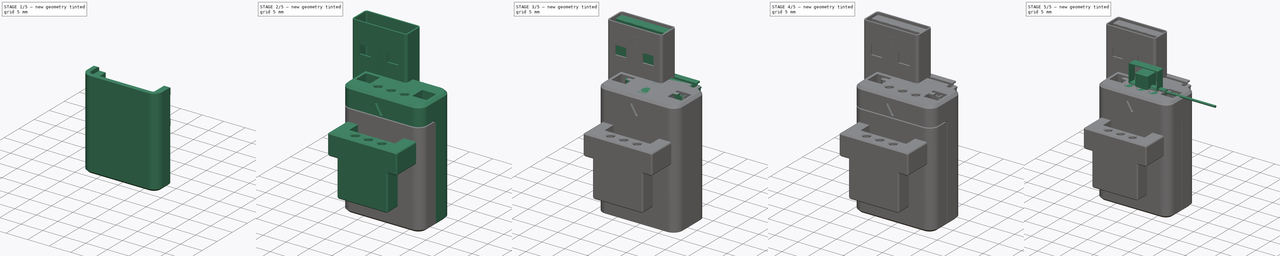
[diagram: build sequence overview — one tinted view per stage of 5, left to right]
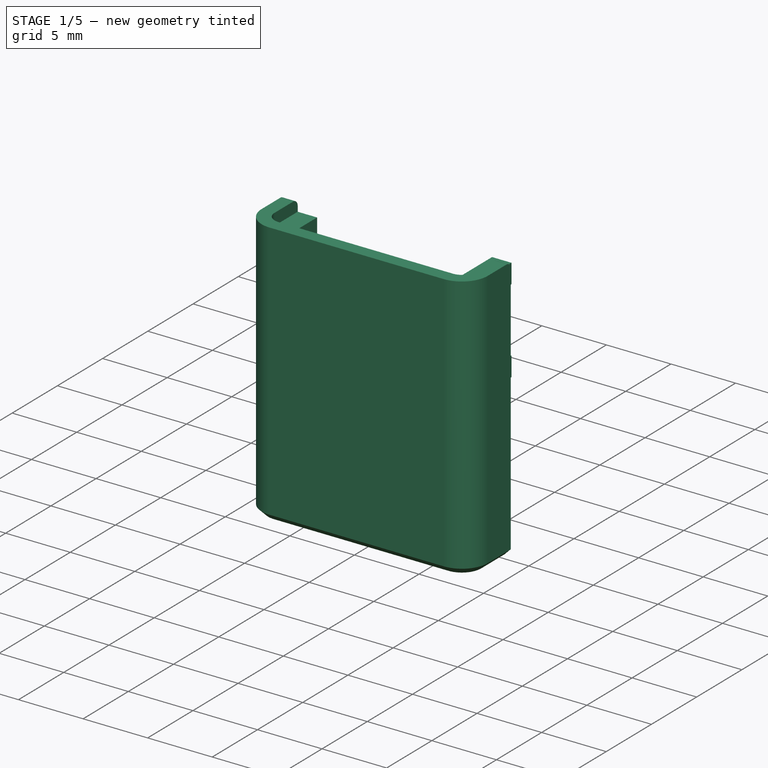
[diagram: stage 1 of 5 — iso view after this stage's code; geometry added in this stage tinted green]
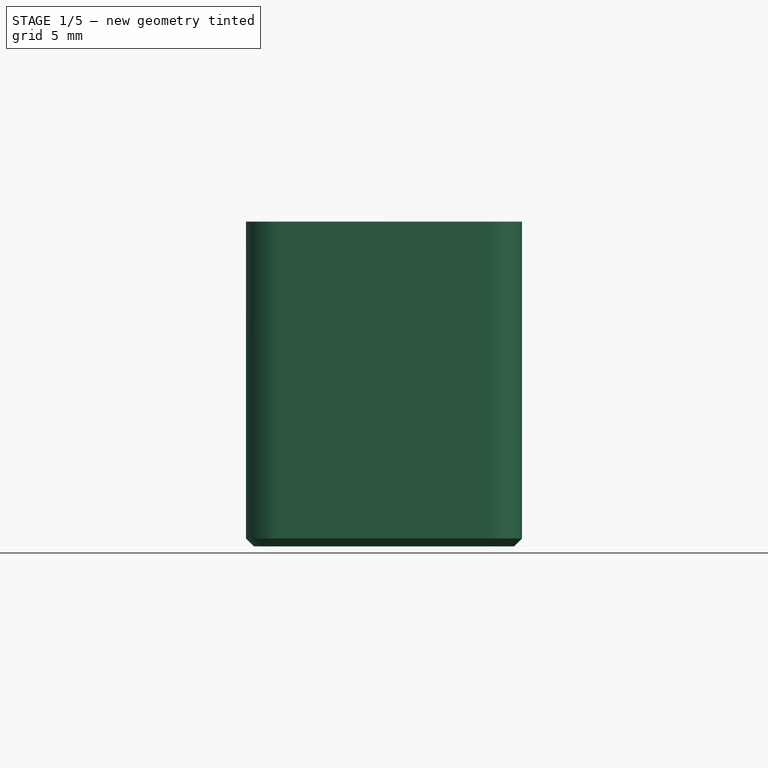
[diagram: stage 1 of 5 — front view after this stage's code; geometry added in this stage tinted green]
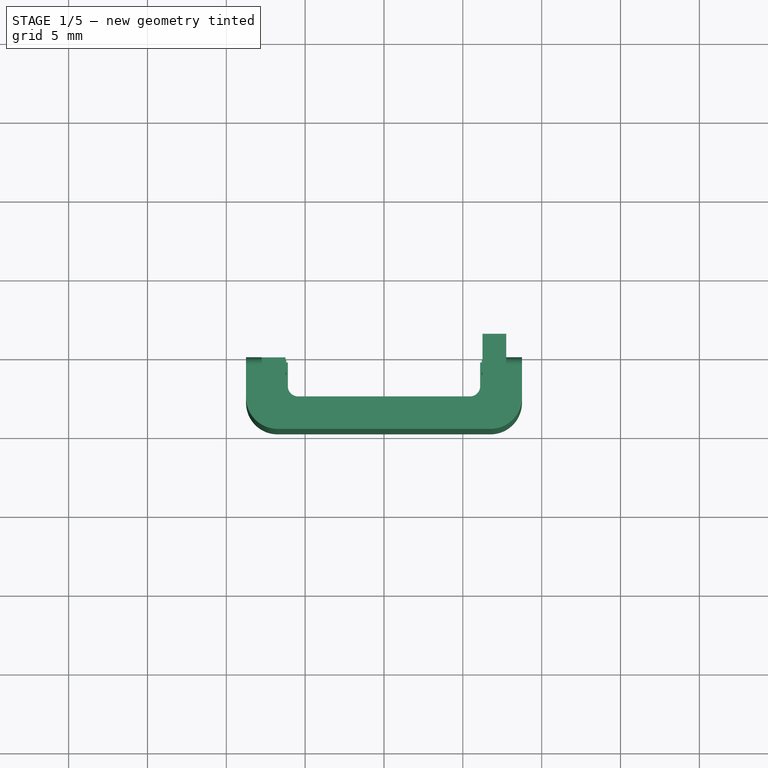
[diagram: stage 1 of 5 — top view after this stage's code; geometry added in this stage tinted green]
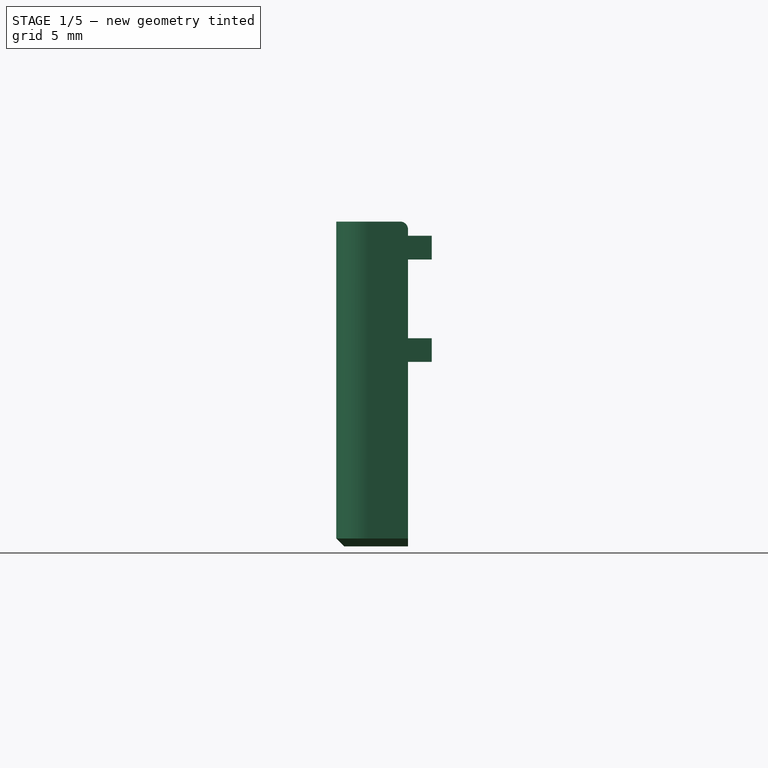
[diagram: stage 1 of 5 — right view after this stage's code; geometry added in this stage tinted green]
FCSTD DOCUMENT  (FreeCAD 0.21R33071 (Git))
Label: test_v0.1_with_parts_I_have
License: All rights reserved
LicenseURL: http://en.wikipedia.org/wiki/All_rights_reserved
objects: Sketcher::SketchObject×43, PartDesign::Pocket×29, PartDesign::CoordinateSystem×25, PartDesign::Pad×21, PartDesign::Body×18, App::Link×15, PartDesign::FeatureBase×13, PartDesign::Mirrored×11, PartDesign::Chamfer×8, Part::Feature×8, App::Part×8, App::DocumentObjectGroup×6, PartDesign::Fillet×6, PartDesign::FeaturePython×4, PartDesign::LinearPattern×2, App::FeaturePython×1, PartDesign::MultiTransform×1
note: 253 computed .brp shape members not serialized (recipe doc carries the construction recipe); baked Part::Feature solids carry a one-line shape summary decoded from their .brp

FEATURE [PartDesign::CoordinateSystem] LCS_Origin
  AttacherType = Attacher::AttachEngine3D
  MapMode = 2
  Support = -> [X_Axis]
FEATURE [App::DocumentObjectGroup] Constraints
FEATURE [App::FeaturePython] Variables  # WARN: FeaturePython — macro-defined, semantics opaque (R4)
  Type = App::PropertyContainer
FEATURE [App::DocumentObjectGroup] Configurations
FEATURE [PartDesign::CoordinateSystem] LCS_002
  AttacherType = Attacher::AttachEngine3D
  MapMode = 2
  Support = -> [X_Axis008]
FEATURE [Sketcher::SketchObject] Sketch013
  FullyConstrained = true
  MapMode = 5
  Support = -> [XY_Plane008]
  sketch-geometry (8):
    g0: LineSegment StartX=-6.75 StartY=4.75 StartZ=0 EndX=6.75 EndY=4.75 EndZ=0
    g1: LineSegment StartX=8.75 StartY=2.75 StartZ=0 EndX=8.75 EndY=-2.75 EndZ=0
    g2: LineSegment StartX=6.75 StartY=-4.75 StartZ=0 EndX=-6.75 EndY=-4.75 EndZ=0
    g3: LineSegment StartX=-8.75 StartY=-2.75 StartZ=0 EndX=-8.75 EndY=2.75 EndZ=0
    g4: ArcOfCircle CenterX=6.75 CenterY=2.75 CenterZ=0 NormalX=0 NormalY=0 NormalZ=1 AngleXU=0 Radius=2 StartAngle=4.675e-13 EndAngle=1.5708
    g5: ArcOfCircle CenterX=6.75 CenterY=-2.75 CenterZ=0 NormalX=0 NormalY=0 NormalZ=1 AngleXU=0 Radius=2 StartAngle=4.71239 EndAngle=6.28319
    g6: ArcOfCircle CenterX=-6.75 CenterY=-2.75 CenterZ=0 NormalX=0 NormalY=0 NormalZ=1 AngleXU=0 Radius=2 StartAngle=3.14159 EndAngle=4.71239
    g7: ArcOfCircle CenterX=-6.75 CenterY=2.75 CenterZ=0 NormalX=0 NormalY=0 NormalZ=1 AngleXU=0 Radius=2 StartAngle=1.5708 EndAngle=3.14159
  constraints (19):
    c: Horizontal(g0)
    c: Horizontal(g2)
    c: Vertical(g1)
    c: Vertical(g3)
    c: Tangent(g0,g4) = 1.5708
    c: Tangent(g1,g4) = 1.5708
    c: Tangent(g1,g5) = 1.5708
    c: Tangent(g2,g5) = 1.5708
    c: Tangent(g2,g6) = 1.5708
    c: Tangent(g3,g6) = 1.5708
    c: Tangent(g0,g7) = 1.5708
    c: Tangent(g3,g7) = 1.5708
    c: Equal(g7,g6)
    c: Equal(g6,g5)
    c: Equal(g5,g4)
    c: Symmetric(g7,g5,g-1)
    c: DistanceY(g2,g0) = 9.5
    c: DistanceX(g3,g1) = 17.5
    c: Radius(g4) = 2
FEATURE [PartDesign::Pad] Pad005
  Direction = (0,0,1)
  Length = 25
  Length2 = 10
  Profile = -> Sketch013
  ReferenceAxis = -> Sketch013 [N_Axis]
  Reversed = true
  Type = 0
FEATURE [Sketcher::SketchObject] Sketch014
  FullyConstrained = true
  MapMode = 5
  Support = -> [Pad005]
  expr: Constraints[19] = 3.1 mm
  expr: Constraints[20] = 11.2 - 2
  sketch-geometry (8):
    g0: LineSegment StartX=4.6 StartY=1.55 StartZ=0 EndX=7.7 EndY=1.55 EndZ=0
    g1: LineSegment StartX=7.7 StartY=1.55 StartZ=0 EndX=7.7 EndY=-1.55 EndZ=0
    g2: LineSegment StartX=7.7 StartY=-1.55 StartZ=0 EndX=4.6 EndY=-1.55 EndZ=0
    g3: LineSegment StartX=4.6 StartY=-1.55 StartZ=0 EndX=4.6 EndY=1.55 EndZ=0
    g4: LineSegment StartX=-7.7 StartY=1.55 StartZ=0 EndX=-4.6 EndY=1.55 EndZ=0
    g5: LineSegment StartX=-4.6 StartY=1.55 StartZ=0 EndX=-4.6 EndY=-1.55 EndZ=0
    g6: LineSegment StartX=-4.6 StartY=-1.55 StartZ=0 EndX=-7.7 EndY=-1.55 EndZ=0
    g7: LineSegment StartX=-7.7 StartY=-1.55 StartZ=0 EndX=-7.7 EndY=1.55 EndZ=0
  constraints (21):
    c: Coincident(g0,g1)
    c: Coincident(g1,g2)
    c: Coincident(g2,g3)
    c: Coincident(g3,g0)
    c: Horizontal(g0)
    c: Horizontal(g2)
    c: Vertical(g1)
    c: Coincident(g4,g5)
    c: Coincident(g5,g6)
    c: Coincident(g6,g7)
    c: Coincident(g7,g4)
    c: Horizontal(g4)
    c: Horizontal(g6)
    c: Vertical(g7)
    c: Equal(g5,g4)
    c: Equal(g4,g0)
    c: Symmetric(g2,g0,g-1)
    c: Symmetric(g5,g4,g-1)
    c: Symmetric(g4,g0,g-2)
    c: DistanceX(g0,g0) = 3.1
    c: DistanceX(g4,g0) = 9.2
FEATURE [PartDesign::Pocket] Pocket008  label="magnets001"
  BaseFeature = -> Pad005
  Direction = (0,0,-1)
  Length = 3.2
  Length2 = 5
  Profile = -> Sketch014
  ReferenceAxis = -> Sketch014 [N_Axis]
  Type = 0
FEATURE [Sketcher::SketchObject] Sketch017
  AttachmentOffset = pos=(0,0,-4.2) rot=(0,0,1;0rad)
  FullyConstrained = true
  MapMode = 5
  Placement = pos=(0,0,-4.2) rot=(0,0,1;0rad)
  Support = -> [XY_Plane008]
  expr: Constraints[16] = 9.5 - 2
  expr: Constraints[17] = 17.5 - 2
  sketch-geometry (8):
    g0: LineSegment StartX=-6.75 StartY=3.75 StartZ=0 EndX=6.75 EndY=3.75 EndZ=0
    g1: LineSegment StartX=7.75 StartY=2.75 StartZ=0 EndX=7.75 EndY=-2.75 EndZ=0
    g2: LineSegment StartX=6.75 StartY=-3.75 StartZ=0 EndX=-6.75 EndY=-3.75 EndZ=0
    g3: LineSegment StartX=-7.75 StartY=-2.75 StartZ=0 EndX=-7.75 EndY=2.75 EndZ=0
    g4: ArcOfCircle CenterX=6.75 CenterY=2.75 CenterZ=0 NormalX=0 NormalY=0 NormalZ=1 AngleXU=0 Radius=1 StartAngle=0 EndAngle=1.5708
    g5: ArcOfCircle CenterX=6.75 CenterY=-2.75 CenterZ=0 NormalX=0 NormalY=0 NormalZ=1 AngleXU=0 Radius=1 StartAngle=4.71239 EndAngle=6.28319
    g6: ArcOfCircle CenterX=-6.75 CenterY=-2.75 CenterZ=0 NormalX=0 NormalY=0 NormalZ=1 AngleXU=0 Radius=1 StartAngle=3.14159 EndAngle=4.71239
    g7: ArcOfCircle CenterX=-6.75 CenterY=2.75 CenterZ=0 NormalX=0 NormalY=0 NormalZ=1 AngleXU=0 Radius=1 StartAngle=1.5708 EndAngle=3.14159
  constraints (19):
    c: Horizontal(g0)
    c: Horizontal(g2)
    c: Vertical(g1)
    c: Vertical(g3)
    c: Tangent(g0,g4) = 1.5708
    c: Tangent(g1,g4) = 1.5708
    c: Tangent(g1,g5) = 1.5708
    c: Tangent(g2,g5) = 1.5708
    c: Tangent(g2,g6) = 1.5708
    c: Tangent(g3,g6) = 1.5708
    c: Tangent(g0,g7) = 1.5708
    c: Tangent(g3,g7) = 1.5708
    c: Equal(g7,g6)
    c: Equal(g6,g5)
    c: Equal(g5,g4)
    c: Symmetric(g7,g5,g-1)
    c: DistanceY(g2,g0) = 7.5
    c: DistanceX(g3,g1) = 15.5
    c: Radius(g4) = 1
FEATURE [PartDesign::Pocket] Pocket010  label="thickness"
  BaseFeature = -> Pocket008
  Direction = (0,0,-1)
  Length = 5
  Length2 = 5
  Profile = -> Sketch017
  ReferenceAxis = -> Sketch017 [N_Axis]
  Type = 1
FEATURE [Sketcher::SketchObject] Sketch018
  AttachmentOffset = pos=(0,0,4.75) rot=(0,0,1;0rad)
  FullyConstrained = false
  MapMode = 5
  Placement = pos=(0,-4.75,-1.1e-15) rot=(1,0,0;1.5708rad)
  Support = -> [XZ_Plane008]
  sketch-geometry (6):
    g0: LineSegment StartX=1.08462 StartY=-1.5 StartZ=0 EndX=-1.08462 EndY=-1.5 EndZ=0
    g1: LineSegment StartX=-1.30113 StartY=-1.875 StartZ=0 EndX=-0.216506 EndY=-3.75362 EndZ=0
    g2: LineSegment StartX=0.216506 StartY=-3.75362 StartZ=0 EndX=1.30113 EndY=-1.875 EndZ=0
    g3: ArcOfCircle CenterX=1.08462 CenterY=-1.75 CenterZ=0 NormalX=0 NormalY=0 NormalZ=1 AngleXU=0 Radius=0.25 StartAngle=5.75959 EndAngle=7.85398
    g4: ArcOfCircle CenterX=-1.08462 CenterY=-1.75 CenterZ=0 NormalX=0 NormalY=0 NormalZ=1 AngleXU=0 Radius=0.25 StartAngle=1.5708 EndAngle=3.66519
    g5: ArcOfCircle CenterX=1e-16 CenterY=-3.62862 CenterZ=0 NormalX=0 NormalY=0 NormalZ=1 AngleXU=0 Radius=0.25 StartAngle=3.66519 EndAngle=5.75959
  constraints (13):
    c: Tangent(g0,g3) = -1.5708
    c: Tangent(g2,g3) = -1.5708
    c: Tangent(g0,g4) = -1.5708
    c: Tangent(g1,g4) = -1.5708
    c: Tangent(g1,g5) = -1.5708
    c: Tangent(g2,g5) = -1.5708
    c: Equal(g3,g4)
    c: Equal(g4,g5)
    c: Radius(g3) = 0.25
    c: Symmetric(g0,g0,g-2)
    c: Equal(g0,g1)
    c: Equal(g1,g2)
    c: DistanceY(g0) = -1.5
FEATURE [PartDesign::Pocket] Pocket011  label="sign"
  BaseFeature = -> Pocket010
  Direction = (0,1,2e-16)
  Length = 0.5
  Length2 = 5
  Profile = -> Sketch018
  ReferenceAxis = -> Sketch018 [N_Axis]
  Type = 0
FEATURE [PartDesign::Chamfer] Chamfer002
  Angle = 45
  Base = -> Pocket011 [Edge12]
  BaseFeature = -> Pocket011
  ChamferType = 0
  FlipDirection = false
  Size = 0.5
  Size2 = 1
  SupportTransform = false
  UseAllEdges = false
FEATURE [Sketcher::SketchObject] Sketch019
  FullyConstrained = true
  MapMode = 5
  Support = -> [Chamfer002]
  expr: Constraints[5] = (9.2 + 3) / 2
  sketch-geometry (5):
    g0: Circle CenterX=0 CenterY=-1.5 CenterZ=0 NormalX=0 NormalY=0 NormalZ=1 AngleXU=0 Radius=0.75
    g1: Circle CenterX=2.9 CenterY=-1.5 CenterZ=0 NormalX=0 NormalY=0 NormalZ=1 AngleXU=0 Radius=0.75
    g2: Circle CenterX=-2.9 CenterY=-1.5 CenterZ=0 NormalX=0 NormalY=0 NormalZ=1 AngleXU=0 Radius=0.75
    g3: Circle CenterX=-6.1 CenterY=0 CenterZ=0 NormalX=0 NormalY=0 NormalZ=1 AngleXU=0 Radius=1
    g4: Circle CenterX=6.1 CenterY=0 CenterZ=0 NormalX=0 NormalY=0 NormalZ=1 AngleXU=0 Radius=1
  constraints (13):
    c: Equal(g1,g0)
    c: Equal(g0,g2)
    c: PointOnObject(g3,g-1)
    c: Equal(g4,g3)
    c: DistanceX(g1) = 2.9
    c: DistanceX(g4) = 6.1
    c: Diameter(g0) = 1.5
    c: Diameter(g4) = 2
    c: PointOnObject(g0,g-2)
    c: Symmetric(g1,g2,g0)
    c: DistanceY(g-1,g0) = -1.5
    c: Horizontal(g2,g1)
    c: Symmetric(g4,g3,g-1)
FEATURE [PartDesign::Pocket] Pocket012  label="pins"
  BaseFeature = -> Chamfer002
  Direction = (0,0,-1)
  Length = 5
  Length2 = 5
  Profile = -> Sketch019
  ReferenceAxis = -> Sketch019 [N_Axis]
  Type = 1
FEATURE [PartDesign::Chamfer] Chamfer003
  Angle = 45
  Base = -> Pocket012 [Edge118,Edge119,Edge39,Edge38,Edge37]
  BaseFeature = -> Pocket012
  ChamferType = 0
  FlipDirection = false
  Size = 0.25
  Size2 = 1
  SupportTransform = false
  UseAllEdges = false
FEATURE [PartDesign::Body] Body005  label="HeatShrink"
  Group = -> [Sketch026,Pad]
  Origin = -> Origin031
  Placement = pos=(13,0,-1e-15) rot=(0,1,0;3.14159rad)
  Tip = -> Pad
FEATURE [App::Part] Part  label="Pogo-Pin-Set"
  Group = -> [Body001,Body002,Body003,Body004,Body005]
  Origin = -> Origin032
FEATURE [App::Part] Part_4  label="Pogo-Pin_Set"
  Group = -> [LCS_009,Part]
  Origin = -> Origin026
FEATURE [App::Link] Pogo_Pin_Set  label="Pogo-Pin_Set001"
  AttachedBy = #LCS_009
  AttachedTo = Conn_USB_Male#LCS_pin1
  AttachmentOffset = pos=(0,0,0.5) rot=(0,1,0;1.5708rad)
  LinkPlacement = pos=(-4.5,2.9,1.5) rot=(0,-0.707107,0.707107;3.14159rad)
  LinkedObject = -> Part_4
  Placement = pos=(-4.5,2.9,1.5) rot=(0,-0.707107,0.707107;3.14159rad)
  SolverId = Asm4EE
  expr: Placement = Conn_USB_Male.Placement * LCS_pin1.Placement * AttachmentOffset * LCS_009.Placement ^ -1
FEATURE [PartDesign::CoordinateSystem] LCS_pin1
  AttacherType = Attacher::AttachEngine3D
  MapMode = 45
  Placement = pos=(-2.9,-1.5,0) rot=(0,0,1.00277;0rad)
  Support = -> [Chamfer003]
FEATURE [PartDesign::CoordinateSystem] LCS_pin2
  AttacherType = Attacher::AttachEngine3D
  MapMode = 45
  Placement = pos=(4.7e-15,-1.5,0) rot=(0,0,1;0rad)
  Support = -> [Chamfer003]
FEATURE [PartDesign::CoordinateSystem] LCS_pin3
  AttacherType = Attacher::AttachEngine3D
  MapMode = 45
  Placement = pos=(2.9,-1.5,0) rot=(0,0,-1.00277;0rad)
  Support = -> [Chamfer003]
FEATURE [App::Link] Pogo_Pin_Set001  label="Pogo-Pin_Set002"
  AttachedBy = #LCS_009
  AttachedTo = Conn_USB_Male#LCS_pin2
  AttachmentOffset = pos=(0,0,0.5) rot=(0,1,0;1.5708rad)
  LinkPlacement = pos=(-4.5,-3.9e-15,1.5) rot=(0,-0.707107,0.707107;3.14159rad)
  LinkedObject = -> Part_4
  Placement = pos=(-4.5,-3.9e-15,1.5) rot=(0,-0.707107,0.707107;3.14159rad)
  SolverId = Asm4EE
  expr: Placement = Conn_USB_Male.Placement * LCS_pin2.Placement * AttachmentOffset * LCS_009.Placement ^ -1
FEATURE [App::Link] Pogo_Pin_1  label="Pogo-Pin_1"
  AttachedBy = #LCS_009
  AttachedTo = Conn_USB_Male#LCS_pin3
  AttachmentOffset = pos=(0,0,0.5) rot=(0,1,0;1.5708rad)
  LinkPlacement = pos=(-4.5,-2.9,1.5) rot=(0,-0.707107,0.707107;3.14159rad)
  LinkedObject = -> Part_4
  Placement = pos=(-4.5,-2.9,1.5) rot=(0,-0.707107,0.707107;3.14159rad)
  SolverId = Asm4EE
  expr: Placement = Conn_USB_Male.Placement * LCS_pin3.Placement * AttachmentOffset * LCS_009.Placement ^ -1
FEATURE [PartDesign::CoordinateSystem] LCS_edge  label="LCS_bottom_edge"
  AttacherType = Attacher::AttachEngine3D
  AttachmentOffset = pos=(0,0,-9.5) rot=(0,0,1;0rad)
  MapMode = 45
  Placement = pos=(-5.34459,4.51719,-5.3e-15) rot=(0,0,1;1.5708rad)
  Support = -> [Part__Feature010]
FEATURE [App::Link] Conn_USB_Male001
  AttachedBy = #LCS_edge
  AttachedTo = Conn_USB_Male#LCS_bottom_edge
  AttachmentOffset = pos=(0,0,0) rot=(0,-1,0;3.14159rad)
  LinkPlacement = pos=(-30,-5.34459,-4.51719) rot=(-0.57735,0.57735,0.57735;4.18879rad)
  LinkedObject = -> Part_2
  Placement = pos=(-30,-5.34459,-4.51719) rot=(-0.57735,0.57735,0.57735;4.18879rad)
  SolverId = Asm4EE
  expr: Placement = Conn_USB_Male.Placement * LCS_bottom_edge.Placement * AttachmentOffset * LCS_edge.Placement ^ -1
FEATURE [Sketcher::SketchObject] Sketch027
  AttachmentOffset = pos=(0,0,-25) rot=(0,0,1;0rad)
  FullyConstrained = true
  MapMode = 5
  Placement = pos=(0,0,-25) rot=(0,0,1;0rad)
  Support = -> [XY_Plane008]
  expr: Constraints[39] = 12 + 0.2
  sketch-geometry (18):
    g0: LineSegment StartX=-6.75 StartY=4.75 StartZ=0 EndX=6.75 EndY=4.75 EndZ=0
    g1: LineSegment StartX=8.75 StartY=2.75 StartZ=0 EndX=8.75 EndY=-2.75 EndZ=0
    g2: LineSegment StartX=6.75 StartY=-4.75 StartZ=0 EndX=-6.75 EndY=-4.75 EndZ=0
    g3: LineSegment StartX=-8.75 StartY=-2.75 StartZ=0 EndX=-8.75 EndY=2.75 EndZ=0
    g4: ArcOfCircle CenterX=6.75 CenterY=2.75 CenterZ=0 NormalX=0 NormalY=0 NormalZ=1 AngleXU=0 Radius=2 StartAngle=0 EndAngle=1.5708
    g5: ArcOfCircle CenterX=6.75 CenterY=-2.75 CenterZ=0 NormalX=0 NormalY=0 NormalZ=1 AngleXU=0 Radius=2 StartAngle=4.71239 EndAngle=6.28319
    g6: ArcOfCircle CenterX=-6.75 CenterY=-2.75 CenterZ=0 NormalX=0 NormalY=0 NormalZ=1 AngleXU=0 Radius=2 StartAngle=3.14159 EndAngle=4.71239
    g7: ArcOfCircle CenterX=-6.75 CenterY=2.75 CenterZ=0 NormalX=0 NormalY=0 NormalZ=1 AngleXU=0 Radius=2 StartAngle=1.5708 EndAngle=3.14159
    g8: ArcOfCircle CenterX=-5.45 CenterY=1.7 CenterZ=0 NormalX=0 NormalY=0 NormalZ=1 AngleXU=0 Radius=0.65 StartAngle=1.5708 EndAngle=3.14159
    g9: LineSegment StartX=-5.45 StartY=2.35 StartZ=0 EndX=5.45 EndY=2.35 EndZ=0
    g10: ArcOfCircle CenterX=5.45 CenterY=1.7 CenterZ=0 NormalX=0 NormalY=0 NormalZ=1 AngleXU=0 Radius=0.65 StartAngle=2e-16 EndAngle=1.5708
    g11: LineSegment StartX=6.1 StartY=1.7 StartZ=0 EndX=6.1 EndY=-1.7 EndZ=0
    g12: ArcOfCircle CenterX=5.45 CenterY=-1.7 CenterZ=0 NormalX=0 NormalY=0 NormalZ=1 AngleXU=0 Radius=0.65 StartAngle=4.71239 EndAngle=6.28319
    g13: LineSegment StartX=5.45 StartY=-2.35 StartZ=0 EndX=-5.45 EndY=-2.35 EndZ=0
    g14: ArcOfCircle CenterX=-5.45 CenterY=-1.7 CenterZ=0 NormalX=0 NormalY=0 NormalZ=1 AngleXU=0 Radius=0.65 StartAngle=3.14159 EndAngle=4.71239
    g15: LineSegment StartX=-6.1 StartY=-1.7 StartZ=0 EndX=-6.1 EndY=1.7 EndZ=0
    g16: GeomPoint X=-6.1 Y=2.35 Z=0
    g17: GeomPoint X=6.1 Y=-2.35 Z=0
  constraints (42):
    c: Horizontal(g0)
    c: Horizontal(g2)
    c: Vertical(g1)
    c: Vertical(g3)
    c: Tangent(g0,g4) = 1.5708
    c: Tangent(g1,g4) = 1.5708
    c: Tangent(g1,g5) = 1.5708
    c: Tangent(g2,g5) = 1.5708
    c: Tangent(g2,g6) = 1.5708
    c: Tangent(g3,g6) = 1.5708
    c: Tangent(g0,g7) = 1.5708
    c: Tangent(g3,g7) = 1.5708
    c: Equal(g7,g6)
    c: Equal(g6,g5)
    c: Equal(g5,g4)
    c: Symmetric(g7,g5,g-1)
    c: DistanceY(g2,g0) = 9.5
    c: DistanceX(g3,g1) = 17.5
    c: Radius(g4) = 2
    c: Tangent(g8,g9) = 1.5708
    c: Tangent(g9,g10) = 1.5708
    c: Tangent(g10,g11) = 1.5708
    c: Tangent(g11,g12) = 1.5708
    c: Tangent(g12,g13) = 1.5708
    c: Tangent(g13,g14) = 1.5708
    c: Tangent(g14,g15) = 1.5708
    c: Tangent(g15,g8) = 1.5708
    c: Horizontal(g9)
    c: Horizontal(g13)
    c: Vertical(g11)
    c: Vertical(g15)
    c: Equal(g8,g10)
    c: Equal(g10,g12)
    c: Equal(g12,g14)
    c: PointOnObject(g16,g9)
    c: PointOnObject(g16,g15)
    c: PointOnObject(g17,g11)
    c: PointOnObject(g17,g13)
    c: Symmetric(g16,g17,g-1)
    c: DistanceX(g8,g10) = 12.2
    c: DistanceY(g12,g9) = 4.7
    c: Radius(g10) = 0.65
FEATURE [PartDesign::Pad] Pad009  label="back_wall001"
  BaseFeature = -> Chamfer003
  Direction = (0,0,1)
  Length = 1
  Length2 = 10
  Profile = -> Sketch027
  ReferenceAxis = -> Sketch027 [N_Axis]
  Refine = true
  Type = 0
FEATURE [PartDesign::Chamfer] Chamfer
  Angle = 45
  Base = -> Pad009 [Edge129]
  BaseFeature = -> Pad009
  ChamferType = 0
  FlipDirection = false
  Size = 0.5
  Size2 = 1
  SupportTransform = false
  UseAllEdges = false
FEATURE [PartDesign::Body] Body009  label="USB v6 Shell Mod"
  BaseFeature = -> Part__Feature010
  Group = -> [Clone008,Sketch042,Pocket030,Pad016,Pad017,Pad020,Sketch045,Pocket034]
  Origin = -> Origin038
  Tip = -> Pocket034
FEATURE [App::Part] USB_surinkimas_v4  label="USB_surinkimas v4"
  Group = -> [usb_inside_v5,Part__Feature010,Body009]
  Origin = -> Origin021
FEATURE [App::Part] Usb_Male  label="USB-Male"
  Group = -> [LCS_006,USB_surinkimas_v4]
  Origin = -> Origin023
FEATURE [App::Part] Part_2  label="Conn_USB_Male"
  Group = -> [LCS_007,Usb_Male,LCS_edge]
  Origin = -> Origin024
FEATURE [Sketcher::SketchObject] Sketch046
  AttachmentOffset = pos=(0,0,5) rot=(0,0,1;0rad)
  FullyConstrained = true
  MapMode = 5
  Placement = pos=(5,-1.1e-15,1.1e-15) rot=(0.57735,0.57735,0.57735;2.0944rad)
  Support = -> [YZ_Plane008]
  expr: Constraints[13] = 1.5 - 0.2
  expr: Constraints[15] = 10.5 + 0.2
  sketch-geometry (6):
    g0: LineSegment StartX=3.75 StartY=-24 StartZ=0 EndX=3.75 EndY=-11.8 EndZ=0
    g1: LineSegment StartX=3.75 StartY=-11.8 StartZ=0 EndX=0.05 EndY=-11.8 EndZ=0
    g2: LineSegment StartX=0.05 StartY=-11.8 StartZ=0 EndX=0.05 EndY=-13.3 EndZ=0
    g3: LineSegment StartX=0.05 StartY=-13.3 StartZ=0 EndX=2.45 EndY=-13.3 EndZ=0
    g4: LineSegment StartX=2.45 StartY=-13.3 StartZ=0 EndX=2.45 EndY=-24 EndZ=0
    g5: LineSegment StartX=2.45 StartY=-24 StartZ=0 EndX=3.75 EndY=-24 EndZ=0
  constraints (18):
    c: Vertical(g0)
    c: Coincident(g0,g1)
    c: Horizontal(g1)
    c: Coincident(g1,g2)
    c: Vertical(g2)
    c: Coincident(g2,g3)
    c: Coincident(g3,g4)
    c: Vertical(g4)
    c: Coincident(g4,g5)
    c: Coincident(g5,g0)
    c: Horizontal(g5)
    c: Horizontal(g3)
    c: DistanceX(g0) = 3.75
    c: DistanceX(g5,g5) = 1.3
    c: DistanceY(g0) = -24
    c: DistanceY(g4,g4) = 10.7
    c: DistanceY(g2,g2) = 1.5
    c: DistanceX(g1,g1) = 3.7
FEATURE [PartDesign::Pad] Pad021
  BaseFeature = -> Chamfer
  Direction = (1,-2e-16,3e-16)
  Length = 1
  Length2 = 10
  Midplane = true
  Profile = -> Sketch046
  ReferenceAxis = -> Sketch046 [N_Axis]
  Type = 0
FEATURE [PartDesign::LinearPattern] LinearPattern001
  BaseFeature = -> Pad021
  Direction = -> Sketch046 [N_Axis]
  Length = 10
  Occurrences = 4
  Originals = -> [Pad021]
  Reversed = true
FEATURE [Sketcher::SketchObject] Sketch047
  FullyConstrained = true
  MapMode = 5
  Placement = pos=(0,0,0) rot=(1,0,0;1.5708rad)
  Support = -> [XZ_Plane008]
  sketch-geometry (4):
    g0: LineSegment StartX=6.2 StartY=-13.5 StartZ=0 EndX=7.75 EndY=-13.5 EndZ=0
    g1: LineSegment StartX=7.75 StartY=-13.5 StartZ=0 EndX=7.75 EndY=-24 EndZ=0
    g2: LineSegment StartX=7.75 StartY=-24 StartZ=0 EndX=6.2 EndY=-24 EndZ=0
    g3: LineSegment StartX=6.2 StartY=-24 StartZ=0 EndX=6.2 EndY=-13.5 EndZ=0
  constraints (12):
    c: Coincident(g0,g1)
    c: Coincident(g1,g2)
    c: Coincident(g2,g3)
    c: Coincident(g3,g0)
    c: Horizontal(g0)
    c: Horizontal(g2)
    c: Vertical(g1)
    c: Vertical(g3)
    c: DistanceY(g1) = -24
    c: DistanceX(g1) = 7.75
    c: DistanceX(g2,g2) = 1.55
    c: DistanceY(g1,g1) = 10.5
FEATURE [PartDesign::Pad] Pad022
  BaseFeature = -> LinearPattern001
  Direction = (0,-1,-2e-16)
  Length = 2
  Length2 = 10
  Midplane = true
  Profile = -> Sketch047
  ReferenceAxis = -> Sketch047 [N_Axis]
  Type = 0
FEATURE [PartDesign::Mirrored] Mirrored008
  BaseFeature = -> Pad022
  MirrorPlane = -> Sketch047 [V_Axis]
  Originals = -> [Pad022]
FEATURE [Sketcher::SketchObject] Sketch048
  FullyConstrained = true
  MapMode = 5
  Placement = pos=(0,0,0) rot=(1,0,0;1.5708rad)
  Support = -> [XZ_Plane008]
  sketch-geometry (8):
    g0: LineSegment StartX=6.25 StartY=-5.3 StartZ=0 EndX=7.75 EndY=-5.3 EndZ=0
    g1: LineSegment StartX=7.75 StartY=-5.3 StartZ=0 EndX=7.75 EndY=-6.8 EndZ=0
    g2: LineSegment StartX=7.75 StartY=-6.8 StartZ=0 EndX=6.25 EndY=-6.8 EndZ=0
    g3: LineSegment StartX=6.25 StartY=-6.8 StartZ=0 EndX=6.25 EndY=-5.3 EndZ=0
    g4: LineSegment StartX=6.25 StartY=-11.8 StartZ=0 EndX=7.75 EndY=-11.8 EndZ=0
    g5: LineSegment StartX=7.75 StartY=-11.8 StartZ=0 EndX=7.75 EndY=-13.3 EndZ=0
    g6: LineSegment StartX=7.75 StartY=-13.3 StartZ=0 EndX=6.25 EndY=-13.3 EndZ=0
    g7: LineSegment StartX=6.25 StartY=-13.3 StartZ=0 EndX=6.25 EndY=-11.8 EndZ=0
  constraints (24):
    c: Coincident(g0,g1)
    c: Coincident(g1,g2)
    c: Coincident(g2,g3)
    c: Coincident(g3,g0)
    c: Horizontal(g0)
    c: Horizontal(g2)
    c: Vertical(g1)
    c: Vertical(g3)
    c: Coincident(g4,g5)
    c: Coincident(g5,g6)
    c: Coincident(g6,g7)
    c: Coincident(g7,g4)
    c: Horizontal(g4)
    c: Horizontal(g6)
    c: Vertical(g5)
    c: Vertical(g7)
    c: Equal(g5,g4)
    c: Equal(g1,g2)
    c: Vertical(g4,g1)
    c: Equal(g5,g1)
    c: DistanceY(g3,g3) = 1.5
    c: DistanceX(g0) = 7.75
    c: DistanceY(g4,g1) = 5
    c: DistanceY(g5) = -13.3
FEATURE [PartDesign::Pad] Pad023
  BaseFeature = -> Mirrored008
  Direction = (0,-1,-2e-16)
  Length = 8
  Length2 = 10
  Midplane = true
  Profile = -> Sketch048
  ReferenceAxis = -> Sketch048 [N_Axis]
  Type = 0
FEATURE [PartDesign::Mirrored] Mirrored009
  BaseFeature = -> Pad023
  MirrorPlane = -> Sketch048 [V_Axis]
  Originals = -> [Pad023]
FEATURE [PartDesign::Body] Body012  label="USB-Male_Bot"
  Group = -> [Clone011,Sketch054,Pocket038,Fillet005,Sketch055,Pocket039,Mirrored010]
  Origin = -> Origin042
  Placement = pos=(-18,0,0) rot=(0,0,1;0rad)
  Tip = -> Mirrored010
FEATURE [PartDesign::FeatureBase] Clone012
  BaseFeature = -> Conn_Male002
FEATURE [Sketcher::SketchObject] Sketch056
  FullyConstrained = false
  MapMode = 5
  Placement = pos=(0,0,0) rot=(0.57735,0.57735,0.57735;2.0944rad)
  Support = -> [YZ_Plane043]
  expr: Constraints[8] = -4.2 - 0.2
  sketch-geometry (8):
    g0: LineSegment StartX=-7.2 StartY=-4.4 StartZ=0 EndX=-0.2 EndY=-4.4 EndZ=0
    g1: LineSegment StartX=-0.2 StartY=-4.4 StartZ=0 EndX=-0.2 EndY=-26.4 EndZ=0
    g2: LineSegment StartX=-0.2 StartY=-26.4 StartZ=0 EndX=-7.2 EndY=-26.4 EndZ=0
    g3: LineSegment StartX=-7.2 StartY=-26.4 StartZ=0 EndX=-7.2 EndY=-4.4 EndZ=0
    g4: LineSegment StartX=-13.8934 StartY=6.39114 StartZ=0 EndX=12.459 EndY=6.39114 EndZ=0
    g5: LineSegment StartX=12.459 StartY=6.39114 StartZ=0 EndX=12.459 EndY=-32.2298 EndZ=0
    g6: LineSegment StartX=12.459 StartY=-32.2298 StartZ=0 EndX=-13.8934 EndY=-32.2298 EndZ=0
    g7: LineSegment StartX=-13.8934 StartY=-32.2298 StartZ=0 EndX=-13.8934 EndY=6.39114 EndZ=0
  constraints (20):
    c: Coincident(g0,g1)
    c: Coincident(g1,g2)
    c: Coincident(g2,g3)
    c: Coincident(g3,g0)
    c: Horizontal(g0)
    c: Horizontal(g2)
    c: Vertical(g1)
    c: Vertical(g3)
    c: DistanceY(g0) = -4.4
    c: DistanceX(g1) = -0.2
    c: DistanceY(g3,g3) = 22
    c: DistanceX(g2,g2) = 7
    c: Coincident(g4,g5)
    c: Coincident(g5,g6)
    c: Coincident(g6,g7)
    c: Coincident(g7,g4)
    c: Horizontal(g4)
    c: Horizontal(g6)
    c: Vertical(g5)
    c: Vertical(g7)
FEATURE [PartDesign::Pocket] Pocket040
  BaseFeature = -> Clone012
  Direction = (-1,2e-16,-3e-16)
  Length = 5
  Length2 = 5
  Midplane = true
  Profile = -> Sketch056
  ReferenceAxis = -> Sketch056 [N_Axis]
  Type = 1
FEATURE [Sketcher::SketchObject] Sketch057
  AttachmentOffset = pos=(0,0,0.2) rot=(0,0,1;0rad)
  FullyConstrained = true
  MapMode = 5
  Placement = pos=(0,-0.2,0) rot=(1,0,0;1.5708rad)
  Support = -> [XZ_Plane043]
  sketch-geometry (8):
    g0: LineSegment StartX=6.25 StartY=-5.3 StartZ=0 EndX=7.75 EndY=-5.3 EndZ=0
    g1: LineSegment StartX=7.75 StartY=-5.3 StartZ=0 EndX=7.75 EndY=-6.8 EndZ=0
    g2: LineSegment StartX=7.75 StartY=-6.8 StartZ=0 EndX=6.25 EndY=-6.8 EndZ=0
    g3: LineSegment StartX=6.25 StartY=-6.8 StartZ=0 EndX=6.25 EndY=-5.3 EndZ=0
    g4: LineSegment StartX=6.25 StartY=-11.8 StartZ=0 EndX=7.75 EndY=-11.8 EndZ=0
    g5: LineSegment StartX=7.75 StartY=-11.8 StartZ=0 EndX=7.75 EndY=-13.3 EndZ=0
    g6: LineSegment StartX=7.75 StartY=-13.3 StartZ=0 EndX=6.25 EndY=-13.3 EndZ=0
    g7: LineSegment StartX=6.25 StartY=-13.3 StartZ=0 EndX=6.25 EndY=-11.8 EndZ=0
  constraints (24):
    c: Coincident(g0,g1)
    c: Coincident(g1,g2)
    c: Coincident(g2,g3)
    c: Coincident(g3,g0)
    c: Horizontal(g0)
    c: Horizontal(g2)
    c: Vertical(g1)
    c: Vertical(g3)
    c: Coincident(g4,g5)
    c: Coincident(g5,g6)
    c: Coincident(g6,g7)
    c: Coincident(g7,g4)
    c: Horizontal(g4)
    c: Horizontal(g6)
    c: Vertical(g5)
    c: Vertical(g7)
    c: Equal(g5,g4)
    c: Equal(g1,g2)
    c: Vertical(g4,g1)
    c: Equal(g5,g1)
    c: DistanceY(g3,g3) = 1.5
    c: DistanceX(g0) = 7.75
    c: DistanceY(g4,g1) = 5
    c: DistanceY(g5) = -13.3
FEATURE [PartDesign::Fillet] Fillet006
  Base = -> Pocket040 [Edge31,Edge25]
  BaseFeature = -> Pocket040
  Radius = 0.5
  SupportTransform = false
  UseAllEdges = false
FEATURE [PartDesign::Pad] Pad025
  BaseFeature = -> Fillet006
  Direction = (0,-1,2e-16)
  Length = 1.5
  Length2 = 10
  Profile = -> Sketch057
  ReferenceAxis = -> Sketch057 [N_Axis]
  Reversed = true
  Type = 0
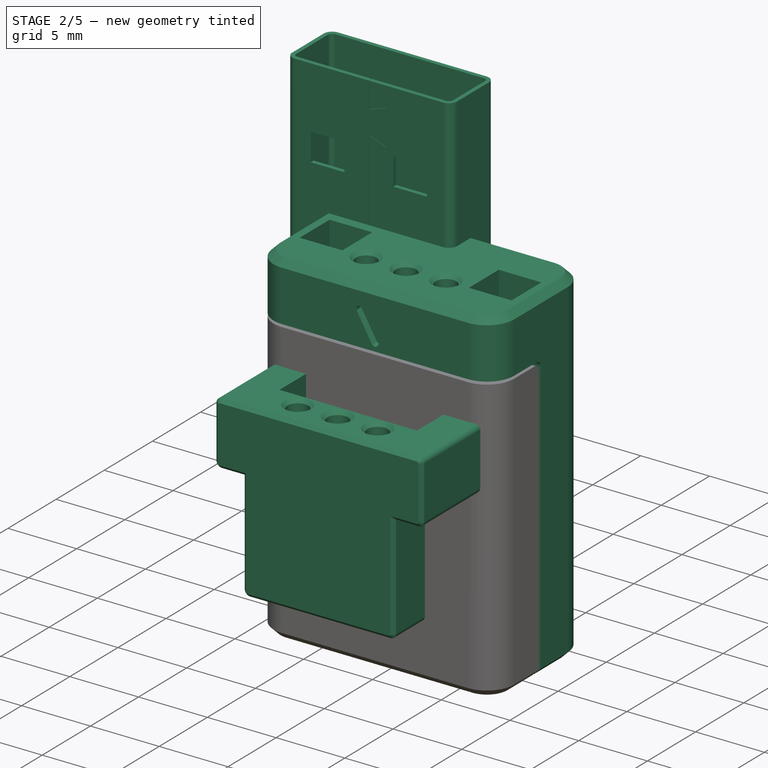
[diagram: stage 2 of 5 — iso view after this stage's code; geometry added in this stage tinted green]
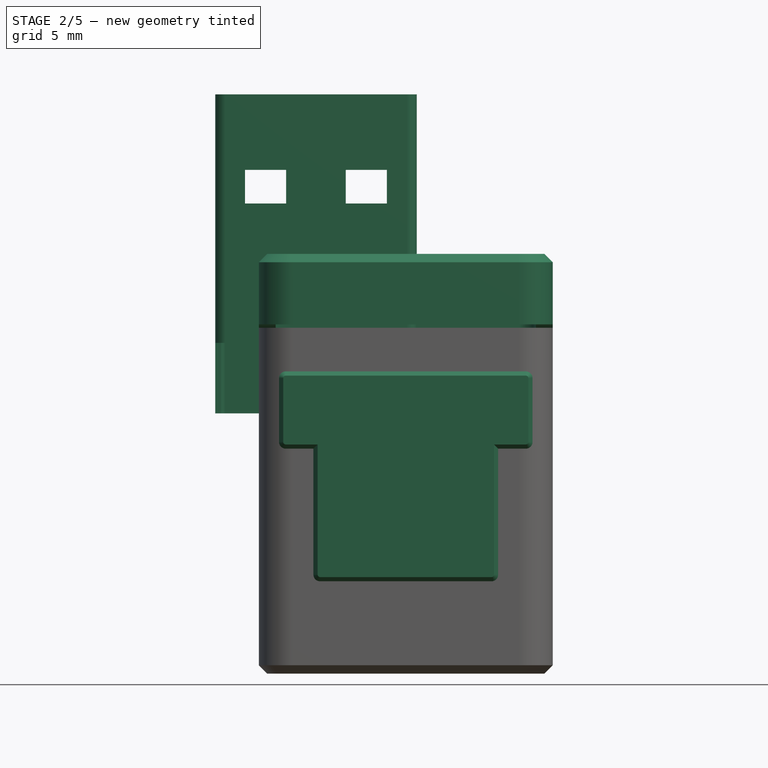
[diagram: stage 2 of 5 — front view after this stage's code; geometry added in this stage tinted green]
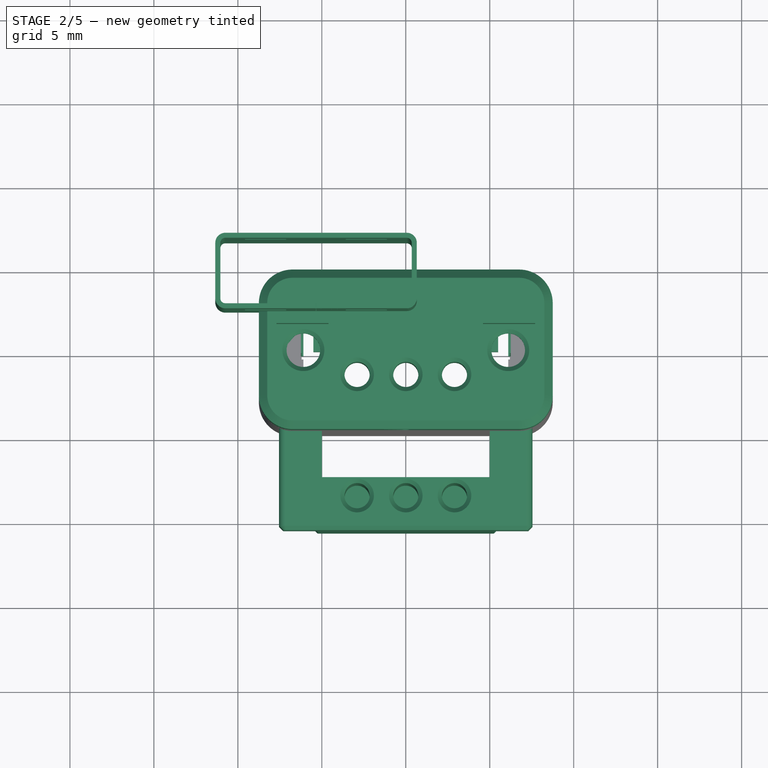
[diagram: stage 2 of 5 — top view after this stage's code; geometry added in this stage tinted green]
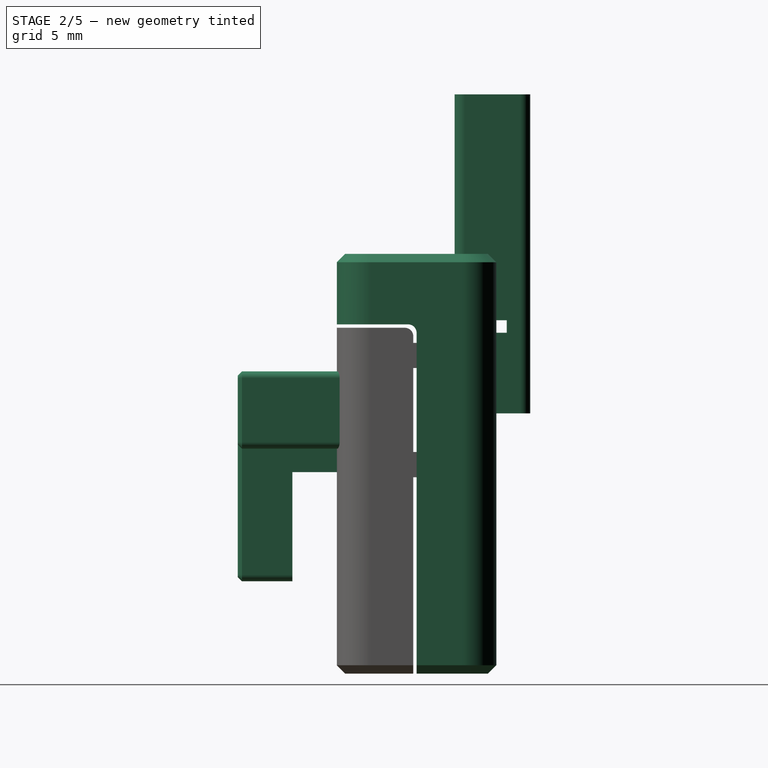
[diagram: stage 2 of 5 — right view after this stage's code; geometry added in this stage tinted green]
FEATURE [PartDesign::Body] Body008  label="usb3_mod"
  BaseFeature = -> Part__Feature
  Group = -> [Clone007,Sketch039,Pocket028,Mirrored006,Sketch040,Pad015,Mirrored007,Sketch041,Pocket029]
  Origin = -> Origin037
  Tip = -> Pocket029
FEATURE [App::Part] Part_3  label="Conn_USB_Female"
  Group = -> [LCS_008,LCS_edge001,Part__Feature,Body008]
  Origin = -> Origin025
FEATURE [PartDesign::FeatureBase] Clone008
  BaseFeature = -> Part__Feature010
  Placement = pos=(-5.34459,6.61719,0) rot=(0,0,1;3.14159rad)
FEATURE [Sketcher::SketchObject] Sketch042
  ExternalGeometry = -> [Clone008]
  FullyConstrained = true
  MapMode = 5
  Placement = pos=(0,0,0) rot=(0.57735,0.57735,0.57735;2.0944rad)
  Support = -> [YZ_Plane038]
  sketch-geometry (4):
    g0: LineSegment StartX=0 StartY=-7 StartZ=0 EndX=3.76719 EndY=-7 EndZ=0
    g1: LineSegment StartX=3.76719 StartY=-7 StartZ=0 EndX=3.76719 EndY=-9.8 EndZ=0
    g2: LineSegment StartX=3.76719 StartY=-9.8 StartZ=0 EndX=0 EndY=-9.8 EndZ=0
    g3: LineSegment StartX=0 StartY=-9.8 StartZ=0 EndX=0 EndY=-7 EndZ=0
  constraints (12):
    c: Coincident(g0,g1)
    c: Coincident(g1,g2)
    c: Coincident(g2,g3)
    c: Coincident(g3,g0)
    c: Horizontal(g0)
    c: Horizontal(g2)
    c: Vertical(g1)
    c: Vertical(g3)
    c: PointOnObject(g0,g-2)
    c: DistanceY(g3,g3) = 2.8
    c: DistanceY(g0) = -7
    c: Vertical(g0,g-3)
FEATURE [PartDesign::Pocket] Pocket030
  BaseFeature = -> Clone008
  Direction = (-1,2e-16,-3e-16)
  Length = 5
  Length2 = 5
  Midplane = true
  Placement = pos=(-5.34459,6.61719,0) rot=(0,0,1;3.14159rad)
  Profile = -> Sketch042
  ReferenceAxis = -> Sketch042 [N_Axis]
  Refine = true
  Type = 1
FEATURE [Sketcher::SketchObject] Sketch043
  AttachmentOffset = pos=(0,0,-2.65) rot=(0,0,1;0rad)
  FullyConstrained = false
  MapMode = 5
  Placement = pos=(0,2.65,6e-16) rot=(1,0,0;1.5708rad)
  Support = -> [XZ_Plane039]
  sketch-geometry (4):
    g0: LineSegment StartX=-13.8027 StartY=11.1383 StartZ=0 EndX=3.70404 EndY=11.1383 EndZ=0
    g1: LineSegment StartX=3.70404 StartY=11.1383 StartZ=0 EndX=3.70404 EndY=-23.8699 EndZ=0
    g2: LineSegment StartX=3.70404 StartY=-23.8699 StartZ=0 EndX=-13.8027 EndY=-23.8699 EndZ=0
    g3: LineSegment StartX=-13.8027 StartY=-23.8699 StartZ=0 EndX=-13.8027 EndY=11.1383 EndZ=0
  constraints (8):
    c: Coincident(g0,g1)
    c: Coincident(g1,g2)
    c: Coincident(g2,g3)
    c: Coincident(g3,g0)
    c: Horizontal(g0)
    c: Horizontal(g2)
    c: Vertical(g1)
    c: Vertical(g3)
FEATURE [PartDesign::Pad] Pad016
  BaseFeature = -> Pocket030
  Direction = (0,-1,-5.8e-15)
  Length = 0.9
  Length2 = 10
  Placement = pos=(-5.34459,6.61719,0) rot=(0,0,1;3.14159rad)
  Profile = -> Pocket030 [Face86,Face87]
  Refine = true
  Type = 0
FEATURE [Sketcher::SketchObject] Sketch049
  AttachmentOffset = pos=(0,0,3.55) rot=(0,0,1;0rad)
  FullyConstrained = true
  MapMode = 5
  Placement = pos=(0,-3.55,8e-16) rot=(1,0,0;1.5708rad)
  Support = -> [XZ_Plane040]
  expr: .AttachmentOffset.Base.z = 3.75 - 0.2
  expr: Constraints[16] = 15.5 - 0.4
  expr: Constraints[17] = -19.7 + 0.2
  expr: Constraints[18] = 11.4 - 0.4
  expr: Constraints[27] = 5 - 0.4
  sketch-geometry (10):
    g0: LineSegment StartX=5.5 StartY=-11.6 StartZ=0 EndX=5.5 EndY=-19.5 EndZ=0
    g1: LineSegment StartX=5.5 StartY=-19.5 StartZ=0 EndX=-5.5 EndY=-19.5 EndZ=0
    g2: LineSegment StartX=-5.5 StartY=-19.5 StartZ=0 EndX=-5.5 EndY=-11.6 EndZ=0
    g3: LineSegment StartX=-7.55 StartY=-7 StartZ=0 EndX=7.55 EndY=-7 EndZ=0
    g4: LineSegment StartX=7.55 StartY=-7 StartZ=0 EndX=7.55 EndY=-11.6 EndZ=0
    g5: LineSegment StartX=7.55 StartY=-11.6 StartZ=0 EndX=5.5 EndY=-11.6 EndZ=0
    g6: LineSegment StartX=-7.55 StartY=-11.6 StartZ=0 EndX=-7.55 EndY=-7 EndZ=0
    g7: LineSegment StartX=-5.5 StartY=-11.6 StartZ=0 EndX=-7.55 EndY=-11.6 EndZ=0
    g8: LineSegment StartX=5.5 StartY=-11.6 StartZ=0 EndX=5.5 EndY=-9.3 EndZ=0
    g9: LineSegment StartX=5.5 StartY=-9.3 StartZ=0 EndX=5.5 EndY=-7 EndZ=0
  constraints (28):
    c: Coincident(g0,g1)
    c: Coincident(g1,g2)
    c: Horizontal(g1)
    c: Vertical(g0)
    c: Vertical(g2)
    c: Coincident(g3,g4)
    c: Coincident(g4,g5)
    c: Coincident(g7,g6)
    c: Coincident(g6,g3)
    c: Horizontal(g5)
    c: Vertical(g4)
    c: Vertical(g6)
    c: Coincident(g5,g0)
    c: Coincident(g7,g2)
    c: Symmetric(g0,g2,g-2)
    c: Symmetric(g3,g3,g-2)
    c: DistanceX(g3,g3) = 15.1
    c: DistanceY(g0) = -19.5
    c: DistanceX(g2,g0) = 11
    c: Horizontal(g7)
    c: Coincident(g8,g0)
    c: Vertical(g8)
    c: Coincident(g9,g8)
    c: PointOnObject(g9,g3)
    c: Vertical(g9)
    c: Equal(g9,g8)
    c: DistanceY(g8) = -9.3
    c: DistanceY(g4,g4) = 4.6
FEATURE [Sketcher::SketchObject] Sketch050
  AttachmentOffset = pos=(0,0,3.55) rot=(0,0,1;0rad)
  FullyConstrained = true
  MapMode = 5
  Placement = pos=(0,-3.55,8e-16) rot=(1,0,0;1.5708rad)
  Support = -> [XZ_Plane040]
  expr: .AttachmentOffset.Base.z = 3.75 - 0.2
  expr: Constraints[16] = 15.5 - 0.4
  expr: Constraints[17] = -19.7 + 0.2
  expr: Constraints[18] = 11.4 - 0.4
  expr: Constraints[27] = 5 - 0.4
  sketch-geometry (10):
    g0: LineSegment StartX=5.5 StartY=-11.6 StartZ=0 EndX=5.5 EndY=-19.5 EndZ=0
    g1: LineSegment StartX=5.5 StartY=-19.5 StartZ=0 EndX=-5.5 EndY=-19.5 EndZ=0
    g2: LineSegment StartX=-5.5 StartY=-19.5 StartZ=0 EndX=-5.5 EndY=-11.6 EndZ=0
    g3: LineSegment StartX=-7.55 StartY=-7 StartZ=0 EndX=7.55 EndY=-7 EndZ=0
    g4: LineSegment StartX=7.55 StartY=-7 StartZ=0 EndX=7.55 EndY=-11.6 EndZ=0
    g5: LineSegment StartX=7.55 StartY=-11.6 StartZ=0 EndX=5.5 EndY=-11.6 EndZ=0
    g6: LineSegment StartX=-7.55 StartY=-11.6 StartZ=0 EndX=-7.55 EndY=-7 EndZ=0
    g7: LineSegment StartX=-5.5 StartY=-11.6 StartZ=0 EndX=-7.55 EndY=-11.6 EndZ=0
    g8: LineSegment StartX=5.5 StartY=-11.6 StartZ=0 EndX=5.5 EndY=-9.3 EndZ=0
    g9: LineSegment StartX=5.5 StartY=-9.3 StartZ=0 EndX=5.5 EndY=-7 EndZ=0
  constraints (28):
    c: Coincident(g0,g1)
    c: Coincident(g1,g2)
    c: Horizontal(g1)
    c: Vertical(g0)
    c: Vertical(g2)
    c: Coincident(g3,g4)
    c: Coincident(g4,g5)
    c: Coincident(g7,g6)
    c: Coincident(g6,g3)
    c: Horizontal(g5)
    c: Vertical(g4)
    c: Vertical(g6)
    c: Coincident(g5,g0)
    c: Coincident(g7,g2)
    c: Symmetric(g0,g2,g-2)
    c: Symmetric(g3,g3,g-2)
    c: DistanceX(g3,g3) = 15.1
    c: DistanceY(g0) = -19.5
    c: DistanceX(g2,g0) = 11
    c: Horizontal(g7)
    c: Coincident(g8,g0)
    c: Vertical(g8)
    c: Coincident(g9,g8)
    c: PointOnObject(g9,g3)
    c: Vertical(g9)
    c: Equal(g9,g8)
    c: DistanceY(g8) = -9.3
    c: DistanceY(g4,g4) = 4.6
FEATURE [PartDesign::Pad] Pad024
  Direction = (0,-1,2e-16)
  Length = 7.1
  Length2 = 10
  Placement = pos=(0,0,0) rot=(1,0,0;1.5708rad)
  Profile = -> Sketch050
  ReferenceAxis = -> Sketch050 [N_Axis]
  Type = 0
  expr: Length = 7.5 - 0.4
FEATURE [PartDesign::CoordinateSystem] LCS_0  label="LCS_base001"
  AttacherType = Attacher::AttachEngine3D
  MapMode = 45
  Placement = pos=(0,-7.1,-9.3) rot=(0,0,1;1.5708rad)
  Support = -> [Pad024]
FEATURE [PartDesign::CoordinateSystem] LCS_guts
  AttacherType = Attacher::AttachEngine3D
  MapMode = 45
  Placement = pos=(0,0,-9.3) rot=(0,0,1;1.5708rad)
  Support = -> [Mirrored009]
FEATURE [PartDesign::Body] Conn_Male002  label="Housing-USB_Male"
  Group = -> [LCS_002,Sketch013,Pad005,Sketch014,Pocket008,Sketch017,Pocket010,Sketch018,Pocket011,Chamfer002,Sketch019,Pocket012,Chamfer003,LCS_mag1,LCS_mag2,LCS_pin1,LCS_pin2,LCS_pin3,Sketch027,Pad009,Chamfer,LCS_bottom_edge,Sketch046,Pad021,LinearPattern001,Sketch047,Pad022,Mirrored008,Sketch048,Pad023,Mirrored009,Sketch049,LCS_guts]
  Origin = -> Origin008
  Tip = -> Mirrored009
FEATURE [App::Link] Housing_USB_Male_Guts001  label="Housing-USB-Male-Guts001"
  AttachedBy = #LCS_0
  AttachedTo = Conn_USB_Male#LCS_guts
  LinkPlacement = pos=(-5,-3.4e-15,-7.1) rot=(0.57735,-0.57735,0.57735;4.18879rad)
  LinkedObject = -> Housing_USB_Male_Guts
  Placement = pos=(-5,-3.4e-15,-7.1) rot=(0.57735,-0.57735,0.57735;4.18879rad)
  SolverId = Asm4EE
  expr: Placement = Conn_USB_Male.Placement * LCS_guts.Placement * AttachmentOffset * LCS_0.Placement ^ -1
FEATURE [App::DocumentObjectGroup] Group  label="Male"
  Group = -> [Conn_USB_Male,Magnet_Cube,Magnet_1,Pogo_Pin_Set,Pogo_Pin_Set001,Pogo_Pin_1,Conn_USB_Male001,Housing_USB_Male_Guts001]
FEATURE [App::Part] Assembly
  AssemblyType = Part::Link
  Group = -> [LCS_Origin,Constraints,Variables,Configurations,Magnet_1,Conn_USB_Male,Magnet_Cube,Pogo_Pin_1,Pogo_Pin_Set,Pogo_Pin_Set001,Group,Magnet_2,Magnet_3,Conm_USB_Female,Group001,Conn_USB_Male001,Conn_USB_Female,Pogo_Contact,Pogo_Contact003,Pogo_Contact_1,Housing_USB_Male_Guts001]
  Origin = -> Origin
  Placement = pos=(0,0,12) rot=(0,0,1;0rad)
  Type = Assembly
FEATURE [Sketcher::SketchObject] Sketch051
  FullyConstrained = true
  MapMode = 5
  Placement = pos=(0,0,0) rot=(0.57735,0.57735,0.57735;2.0944rad)
  Support = -> [YZ_Plane040]
  expr: Constraints[11] = -7 - 0.4
  expr: Constraints[9] = -19.7 + 0.2
  sketch-geometry (4):
    g0: LineSegment StartX=-7.4 StartY=-13 StartZ=0 EndX=0 EndY=-13 EndZ=0
    g1: LineSegment StartX=0 StartY=-13 StartZ=0 EndX=0 EndY=-19.5 EndZ=0
    g2: LineSegment StartX=0 StartY=-19.5 StartZ=0 EndX=-7.4 EndY=-19.5 EndZ=0
    g3: LineSegment StartX=-7.4 StartY=-19.5 StartZ=0 EndX=-7.4 EndY=-13 EndZ=0
  constraints (12):
    c: Coincident(g0,g1)
    c: Coincident(g1,g2)
    c: Coincident(g2,g3)
    c: Coincident(g3,g0)
    c: Horizontal(g0)
    c: Horizontal(g2)
    c: Vertical(g1)
    c: Vertical(g3)
    c: PointOnObject(g1,g-2)
    c: DistanceY(g2) = -19.5
    c: DistanceY(g3,g3) = 6.5
    c: DistanceX(g0) = -7.4
FEATURE [PartDesign::Pocket] Pocket035
  BaseFeature = -> Pad024
  Direction = (-1,2e-16,-3e-16)
  Length = 5
  Length2 = 5
  Midplane = true
  Placement = pos=(0,0,0) rot=(1,0,0;1.5708rad)
  Profile = -> Sketch051
  ReferenceAxis = -> Sketch051 [N_Axis]
  Type = 1
FEATURE [Sketcher::SketchObject] Sketch052
  FullyConstrained = true
  MapMode = 5
  Support = -> [XY_Plane040]
  sketch-geometry (4):
    g0: LineSegment StartX=-5 StartY=0 StartZ=0 EndX=5 EndY=0 EndZ=0
    g1: LineSegment StartX=5 StartY=0 StartZ=0 EndX=5 EndY=-7.5 EndZ=0
    g2: LineSegment StartX=5 StartY=-7.5 StartZ=0 EndX=-5 EndY=-7.5 EndZ=0
    g3: LineSegment StartX=-5 StartY=-7.5 StartZ=0 EndX=-5 EndY=0 EndZ=0
  constraints (11):
    c: Coincident(g0,g1)
    c: Coincident(g1,g2)
    c: Coincident(g2,g3)
    c: Coincident(g3,g0)
    c: Horizontal(g2)
    c: Vertical(g1)
    c: Vertical(g3)
    c: PointOnObject(g0,g-1)
    c: Symmetric(g0,g0,g-2)
    c: DistanceX(g0,g0) = 10
    c: DistanceY(g1,g1) = 7.5
FEATURE [PartDesign::Pocket] Pocket036
  BaseFeature = -> Pocket035
  Direction = (0,0,-1)
  Length = 5
  Length2 = 5
  Midplane = true
  Placement = pos=(0,0,0) rot=(1,0,0;1.5708rad)
  Profile = -> Sketch052
  ReferenceAxis = -> Sketch052 [N_Axis]
  Type = 1
FEATURE [Sketcher::SketchObject] Sketch053
  FullyConstrained = true
  MapMode = 5
  Support = -> [XY_Plane040]
  sketch-geometry (3):
    g0: Circle CenterX=0 CenterY=-8.6 CenterZ=0 NormalX=0 NormalY=0 NormalZ=1 AngleXU=0 Radius=0.75
    g1: Circle CenterX=2.9 CenterY=-8.6 CenterZ=0 NormalX=0 NormalY=0 NormalZ=1 AngleXU=0 Radius=0.75
    g2: Circle CenterX=-2.9 CenterY=-8.6 CenterZ=0 NormalX=0 NormalY=0 NormalZ=1 AngleXU=0 Radius=0.75
  constraints (8):
    c: PointOnObject(g0,g-2)
    c: Equal(g2,g0)
    c: Equal(g0,g1)
    c: Symmetric(g1,g2,g0)
    c: DistanceX(g0,g1) = 2.9
    c: Diameter(g1) = 1.5
    c: DistanceY(g0) = -8.6
    c: Horizontal(g1,g0)
FEATURE [PartDesign::Pocket] Pocket037
  BaseFeature = -> Pocket036
  Direction = (0,0,-1)
  Length = 32.5
  Length2 = 5
  Midplane = true
  Placement = pos=(0,0,0) rot=(1,0,0;1.5708rad)
  Profile = -> Sketch053
  ReferenceAxis = -> Sketch053 [N_Axis]
  Type = 0
FEATURE [PartDesign::Chamfer] Chamfer007
  Angle = 45
  Base = -> Pocket037 [Edge37,Edge36,Edge35]
  BaseFeature = -> Pocket037
  ChamferType = 0
  FlipDirection = false
  Placement = pos=(0,0,0) rot=(1,0,0;1.5708rad)
  Size = 0.25
  Size2 = 1
  SupportTransform = false
  UseAllEdges = false
FEATURE [PartDesign::Fillet] Fillet004
  Base = -> Chamfer007 [Edge3,Edge7,Edge19,Edge55,Edge51,Edge33]
  BaseFeature = -> Chamfer007
  Placement = pos=(0,0,0) rot=(1,0,0;1.5708rad)
  Radius = 0.4
  SupportTransform = false
  UseAllEdges = false
FEATURE [PartDesign::Chamfer] Chamfer008
  Angle = 45
  Base = -> Fillet004 [Edge4,Edge28,Edge14,Edge45]
  BaseFeature = -> Fillet004
  ChamferType = 0
  FlipDirection = false
  Placement = pos=(0,0,0) rot=(1,0,0;1.5708rad)
  Size = 0.25
  Size2 = 1
  SupportTransform = false
  UseAllEdges = false
FEATURE [PartDesign::Body] Housing_USB_Male_Guts  label="Housing-USB-Male-Guts"
  Group = -> [LCS_0,Sketch050,Pad024,Sketch051,Pocket035,Sketch052,Pocket036,Sketch053,Pocket037,Chamfer007,Fillet004,Chamfer008]
  Origin = -> Origin040
  Tip = -> Chamfer008
FEATURE [App::DocumentObjectGroup] Parts
  Group = -> [Conn_Male002,Body,Magnet,Part_2,Part_3,Part_4,Pogo_Contact002,Housing_USB_Male_Guts]
FEATURE [PartDesign::FeatureBase] Clone010
  BaseFeature = -> Housing_USB_Male_Guts
FEATURE [PartDesign::Body] Body011  label="USB-Male-Guts"
  Group = -> [Clone010]
  Origin = -> Origin041
  Placement = pos=(-18,7.1,0) rot=(0,0,1;0rad)
  Tip = -> Clone010
FEATURE [PartDesign::FeatureBase] Clone011
  BaseFeature = -> Conn_Male002
FEATURE [Sketcher::SketchObject] Sketch054
  FullyConstrained = false
  MapMode = 5
  Placement = pos=(0,0,0) rot=(0.57735,0.57735,0.57735;2.0944rad)
  Support = -> [YZ_Plane042]
  sketch-geometry (4):
    g0: LineSegment StartX=-7.578 StartY=-4.2 StartZ=0 EndX=0 EndY=-4.2 EndZ=0
    g1: LineSegment StartX=0 StartY=-4.2 StartZ=0 EndX=0 EndY=-30.7458 EndZ=0
    g2: LineSegment StartX=0 StartY=-30.7458 StartZ=0 EndX=-7.578 EndY=-30.7458 EndZ=0
    g3: LineSegment StartX=-7.578 StartY=-30.7458 StartZ=0 EndX=-7.578 EndY=-4.2 EndZ=0
  constraints (10):
    c: Coincident(g0,g1)
    c: Coincident(g1,g2)
    c: Coincident(g2,g3)
    c: Coincident(g3,g0)
    c: Horizontal(g0)
    c: Horizontal(g2)
    c: Vertical(g1)
    c: Vertical(g3)
    c: PointOnObject(g1,g-2)
    c: DistanceY(g0) = -4.2
FEATURE [PartDesign::Pocket] Pocket038
  BaseFeature = -> Clone011
  Direction = (-1,2e-16,-3e-16)
  Length = 5
  Length2 = 5
  Midplane = true
  Profile = -> Sketch054
  ReferenceAxis = -> Sketch054 [N_Axis]
  Refine = true
  Type = 1
FEATURE [PartDesign::Fillet] Fillet005
  Base = -> Pocket038 [Edge84,Edge30]
  BaseFeature = -> Pocket038
  Radius = 0.5
  SupportTransform = false
  UseAllEdges = false
FEATURE [Sketcher::SketchObject] Sketch055
  FullyConstrained = true
  MapMode = 5
  Placement = pos=(0,0,0) rot=(1,0,0;1.5708rad)
  Support = -> [XZ_Plane042]
  sketch-geometry (8):
    g0: LineSegment StartX=6.25 StartY=-5.3 StartZ=0 EndX=7.75 EndY=-5.3 EndZ=0
    g1: LineSegment StartX=7.75 StartY=-5.3 StartZ=0 EndX=7.75 EndY=-6.8 EndZ=0
    g2: LineSegment StartX=7.75 StartY=-6.8 StartZ=0 EndX=6.25 EndY=-6.8 EndZ=0
    g3: LineSegment StartX=6.25 StartY=-6.8 StartZ=0 EndX=6.25 EndY=-5.3 EndZ=0
    g4: LineSegment StartX=6.25 StartY=-11.8 StartZ=0 EndX=7.75 EndY=-11.8 EndZ=0
    g5: LineSegment StartX=7.75 StartY=-11.8 StartZ=0 EndX=7.75 EndY=-13.3 EndZ=0
    g6: LineSegment StartX=7.75 StartY=-13.3 StartZ=0 EndX=6.25 EndY=-13.3 EndZ=0
    g7: LineSegment StartX=6.25 StartY=-13.3 StartZ=0 EndX=6.25 EndY=-11.8 EndZ=0
  constraints (24):
    c: Coincident(g0,g1)
    c: Coincident(g1,g2)
    c: Coincident(g2,g3)
    c: Coincident(g3,g0)
    c: Horizontal(g0)
    c: Horizontal(g2)
    c: Vertical(g1)
    c: Vertical(g3)
    c: Coincident(g4,g5)
    c: Coincident(g5,g6)
    c: Coincident(g6,g7)
    c: Coincident(g7,g4)
    c: Horizontal(g4)
    c: Horizontal(g6)
    c: Vertical(g5)
    c: Vertical(g7)
    c: Equal(g5,g4)
    c: Equal(g1,g2)
    c: Vertical(g4,g1)
    c: Equal(g5,g1)
    c: DistanceY(g3,g3) = 1.5
    c: DistanceX(g0) = 7.75
    c: DistanceY(g4,g1) = 5
    c: DistanceY(g5) = -13.3
FEATURE [PartDesign::Pocket] Pocket039
  BaseFeature = -> Fillet005
  Direction = (0,1,-2e-16)
  Length = 2
  Length2 = 5
  Profile = -> Sketch055
  ReferenceAxis = -> Sketch055 [N_Axis]
  Type = 0
FEATURE [PartDesign::Mirrored] Mirrored010
  BaseFeature = -> Pocket039
  MirrorPlane = -> Sketch055 [V_Axis]
  Originals = -> [Pocket039]
FEATURE [PartDesign::Mirrored] Mirrored011
  BaseFeature = -> Pad025
  MirrorPlane = -> Sketch057 [V_Axis]
  Originals = -> [Pad025]
  Refine = true
FEATURE [PartDesign::Pocket] Pocket041
  BaseFeature = -> Mirrored011
  Direction = (1,0,0)
  Length = 0.2
  Length2 = 5
  Profile = -> Mirrored011 [Face46,Face44,Face13,Face15]
  Refine = true
  Type = 0
FEATURE [PartDesign::Body] Body013  label="USB_Male_Top"
  Group = -> [Clone012,Sketch056,Pocket040,Sketch057,Fillet006,Pad025,Mirrored011,Pocket041]
  Origin = -> Origin043
  Placement = pos=(-18,0,0) rot=(0,0,1;0rad)
  Tip = -> Pocket041
FEATURE [App::DocumentObjectGroup] Group002  label="3DPrint"
  Group = -> [Body006,Body007,Body011,Body012,Body013]
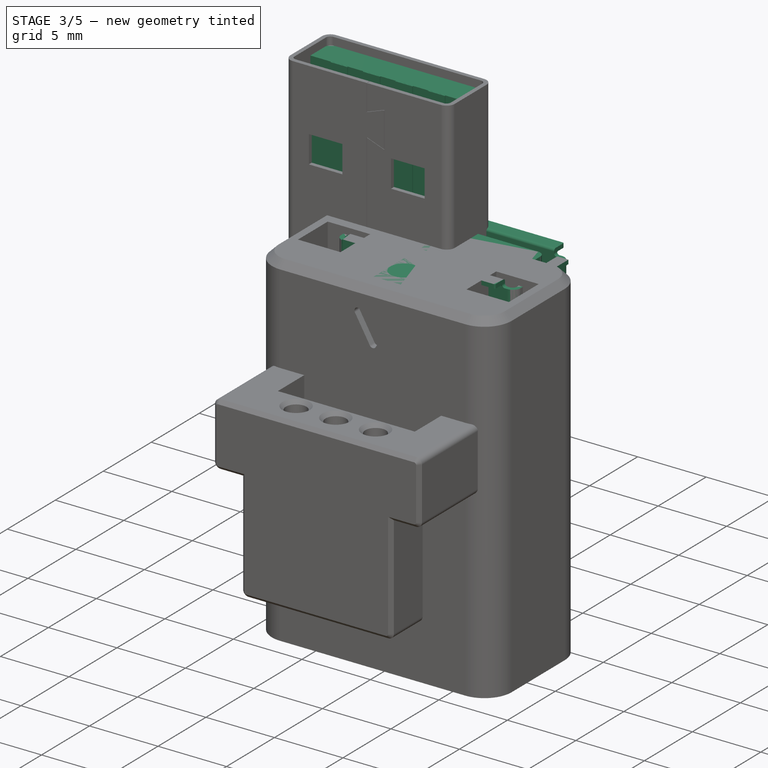
[diagram: stage 3 of 5 — iso view after this stage's code; geometry added in this stage tinted green]
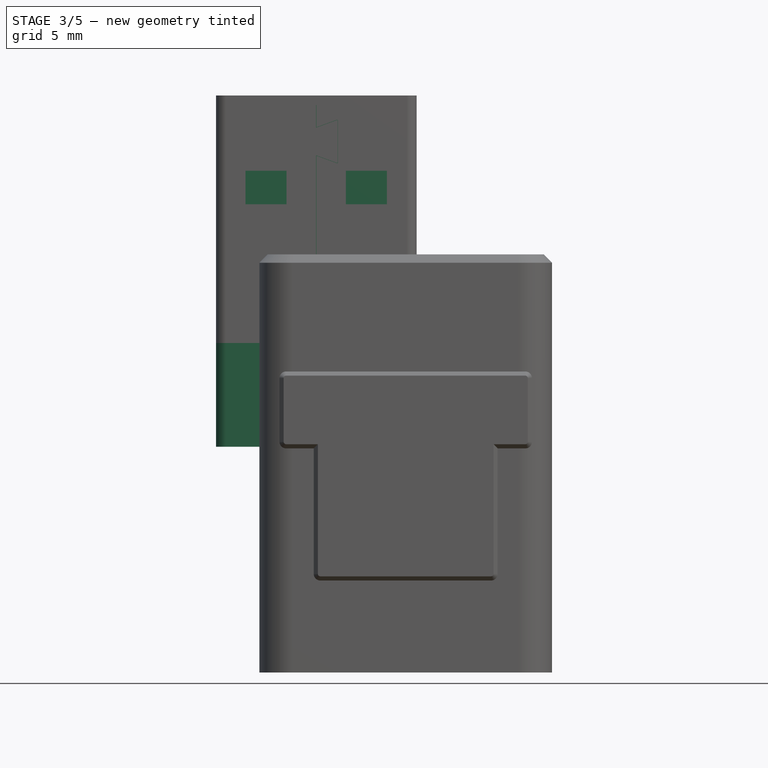
[diagram: stage 3 of 5 — front view after this stage's code; geometry added in this stage tinted green]
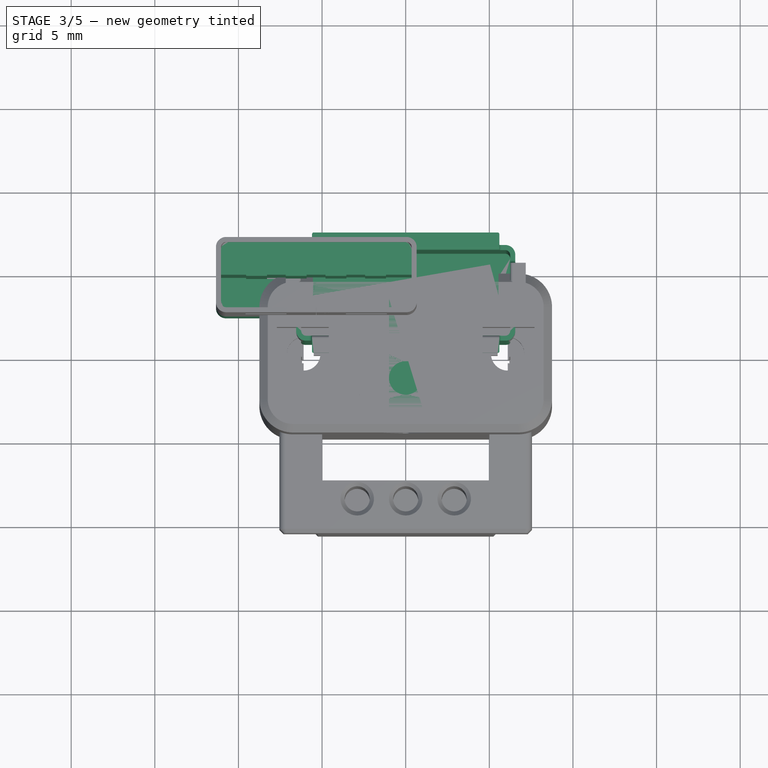
[diagram: stage 3 of 5 — top view after this stage's code; geometry added in this stage tinted green]
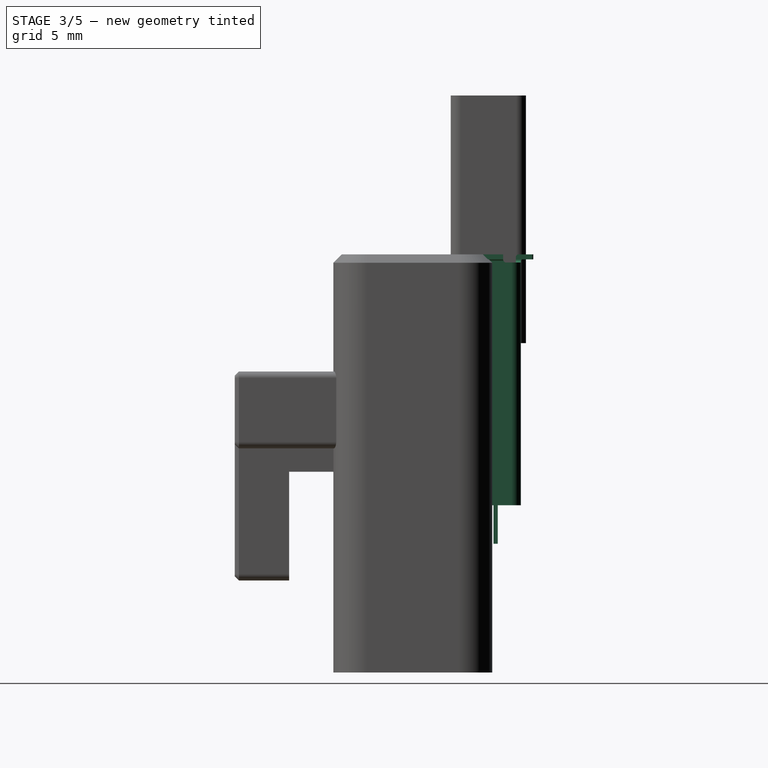
[diagram: stage 3 of 5 — right view after this stage's code; geometry added in this stage tinted green]
FEATURE [PartDesign::FeatureBase] Clone
  BaseFeature = -> Chamfer002
FEATURE [Sketcher::SketchObject] Sketch020
  FullyConstrained = true
  MapMode = 5
  Support = -> [XY_Plane009]
  sketch-geometry (16):
    g0: LineSegment StartX=-1 StartY=3.75 StartZ=0 EndX=1 EndY=3.75 EndZ=0
    g1: LineSegment StartX=1 StartY=3.75 StartZ=0 EndX=1 EndY=3.25 EndZ=0
    g2: LineSegment StartX=1 StartY=3.25 StartZ=0 EndX=-1 EndY=3.25 EndZ=0
    g3: LineSegment StartX=-1 StartY=3.25 StartZ=0 EndX=-1 EndY=3.75 EndZ=0
    g4: LineSegment StartX=2 StartY=3.75 StartZ=0 EndX=4 EndY=3.75 EndZ=0
    g5: LineSegment StartX=4 StartY=3.75 StartZ=0 EndX=4 EndY=3.25 EndZ=0
    g6: LineSegment StartX=4 StartY=3.25 StartZ=0 EndX=2 EndY=3.25 EndZ=0
    g7: LineSegment StartX=2 StartY=3.25 StartZ=0 EndX=2 EndY=3.75 EndZ=0
    g8: LineSegment StartX=-4 StartY=3.75 StartZ=0 EndX=-2 EndY=3.75 EndZ=0
    g9: LineSegment StartX=-2 StartY=3.75 StartZ=0 EndX=-2 EndY=3.25 EndZ=0
    g10: LineSegment StartX=-2 StartY=3.25 StartZ=0 EndX=-4 EndY=3.25 EndZ=0
    g11: LineSegment StartX=-4 StartY=3.25 StartZ=0 EndX=-4 EndY=3.75 EndZ=0
    g12: LineSegment StartX=-2 StartY=3.75 StartZ=0 EndX=-1 EndY=3.75 EndZ=0
    g13: LineSegment StartX=1 StartY=3.75 StartZ=0 EndX=2 EndY=3.75 EndZ=0
    g14: LineSegment StartX=0 StartY=3.75 StartZ=0 EndX=0 EndY=3.5 EndZ=0
    g15: LineSegment StartX=0 StartY=3.5 StartZ=0 EndX=0 EndY=3.25 EndZ=0
  constraints (46):
    c: Coincident(g0,g1)
    c: Coincident(g1,g2)
    c: Coincident(g2,g3)
    c: Coincident(g3,g0)
    c: Horizontal(g2)
    c: Vertical(g1)
    c: Vertical(g3)
    c: Coincident(g4,g5)
    c: Coincident(g5,g6)
    c: Coincident(g6,g7)
    c: Coincident(g7,g4)
    c: Horizontal(g4)
    c: Horizontal(g6)
    c: Vertical(g5)
    c: Vertical(g7)
    c: Coincident(g8,g9)
    c: Coincident(g9,g10)
    c: Coincident(g10,g11)
    c: Coincident(g11,g8)
    c: Horizontal(g8)
    c: Horizontal(g10)
    c: Vertical(g9)
    c: Vertical(g11)
    c: Equal(g0,g8)
    c: Equal(g8,g4)
    c: Equal(g3,g7)
    c: Equal(g7,g11)
    c: Coincident(g12,g8)
    c: Coincident(g12,g0)
    c: Horizontal(g12)
    c: Coincident(g13,g0)
    c: Coincident(g13,g4)
    c: Horizontal(g13)
    c: PointOnObject(g14,g0)
    c: PointOnObject(g14,g-2)
    c: Coincident(g15,g14)
    c: PointOnObject(g15,g2)
    c: Vertical(g15)
    c: Vertical(g14)
    c: Equal(g15,g14)
    c: DistanceY(g14) = 3.5
    c: DistanceY(g5,g5) = 0.5
    c: Symmetric(g0,g0,g-2)
    c: Equal(g12,g13)
    c: DistanceX(g2,g2) = 2
    c: DistanceX(g13,g13) = 1
FEATURE [PartDesign::Pocket] Pocket013  label="contacts_slots"
  BaseFeature = -> Clone
  Direction = (0,0,-1)
  Length = 5
  Length2 = 5
  Profile = -> Sketch020
  ReferenceAxis = -> Sketch020 [N_Axis]
  Type = 1
FEATURE [PartDesign::Mirrored] Mirrored
  BaseFeature = -> Pocket013
  MirrorPlane = -> Sketch020 [H_Axis]
  Originals = -> [Pocket013]
FEATURE [PartDesign::CoordinateSystem] LCS_004
  AttacherType = Attacher::AttachEngine3D
  MapMode = 45
  Placement = pos=(0,1e-16,0) rot=(0,0,1;0rad)
  Support = -> [Fillet002]
FEATURE [PartDesign::Body] Magnet  label="Magnet_Cube"
  Group = -> [LCS_004,Sketch021,Pad006,Fillet002]
  Origin = -> Origin019
  Tip = -> Fillet002
FEATURE [App::Link] Magnet_Cube  label="Magnet_0"
  AttachedBy = #LCS_004
  AttachedTo = Conn_USB_Male#LCS_mag1
  AttachmentOffset = pos=(0,0,0.2) rot=(0,0,1;0rad)
  LinkPlacement = pos=(-8,6.20221,-2.6e-15) rot=(0.57735,-0.57735,0.57735;4.18879rad)
  LinkedObject = -> Magnet
  Placement = pos=(-8,6.20221,-2.6e-15) rot=(0.57735,-0.57735,0.57735;4.18879rad)
  SolverId = Asm4EE
  expr: Placement = Conn_USB_Male.Placement * LCS_mag1.Placement * AttachmentOffset * LCS_004.Placement ^ -1
FEATURE [App::Link] Magnet_1
  AttachedBy = #LCS_004
  AttachedTo = Conn_USB_Male#LCS_mag2
  AttachmentOffset = pos=(0,0,0.2) rot=(0,0,1;0rad)
  LinkPlacement = pos=(-8,-6.20221,4.1e-15) rot=(0.57735,-0.57735,0.57735;4.18879rad)
  LinkedObject = -> Magnet
  Placement = pos=(-8,-6.20221,4.1e-15) rot=(0.57735,-0.57735,0.57735;4.18879rad)
  SolverId = Asm4EE
  expr: Placement = Conn_USB_Male.Placement * LCS_mag2.Placement * AttachmentOffset * LCS_004.Placement ^ -1
FEATURE [App::Link] Magnet_2
  AttachedBy = #LCS_004
  AttachedTo = Conm_USB_Female#LCS_mag003
  AttachmentOffset = pos=(0,0,0.2) rot=(0,0,1;0rad)
  LinkPlacement = pos=(8,-6.20221,1.4e-15) rot=(-0.57735,-0.57735,0.57735;2.0944rad)
  LinkedObject = -> Magnet
  Placement = pos=(8,-6.20221,1.4e-15) rot=(-0.57735,-0.57735,0.57735;2.0944rad)
  SolverId = Asm4EE
  expr: Placement = Conm_USB_Female.Placement * LCS_mag003.Placement * AttachmentOffset * LCS_004.Placement ^ -1
FEATURE [App::Link] Magnet_3
  AttachedBy = #LCS_004
  AttachedTo = Conm_USB_Female#LCS_mag004
  AttachmentOffset = pos=(0,0,0.2) rot=(0,0,1;0rad)
  LinkPlacement = pos=(8,6.20221,-1.6e-15) rot=(-0.57735,-0.57735,0.57735;2.0944rad)
  LinkedObject = -> Magnet
  Placement = pos=(8,6.20221,-1.6e-15) rot=(-0.57735,-0.57735,0.57735;2.0944rad)
  SolverId = Asm4EE
  expr: Placement = Conm_USB_Female.Placement * LCS_mag004.Placement * AttachmentOffset * LCS_004.Placement ^ -1
FEATURE [PartDesign::CoordinateSystem] LCS_mag1
  AttacherType = Attacher::AttachEngine3D
  MapMode = 45
  Placement = pos=(-6.20221,2e-16,-3.2) rot=(0,0,1;0rad)
  Support = -> [Chamfer003]
FEATURE [PartDesign::CoordinateSystem] LCS_mag2
  AttacherType = Attacher::AttachEngine3D
  MapMode = 45
  Placement = pos=(6.20221,4e-16,-3.2) rot=(0,0,1;0rad)
  Support = -> [Chamfer003]
FEATURE [Sketcher::SketchObject] Sketch022
  FullyConstrained = true
  MapMode = 5
  Support = -> [XY_Plane009]
  expr: Constraints[9] = (9.2 + 3) / 2
  sketch-geometry (5):
    g0: Circle CenterX=0 CenterY=0 CenterZ=0 NormalX=0 NormalY=0 NormalZ=1 AngleXU=0 Radius=0.75
    g1: Circle CenterX=2.9 CenterY=0 CenterZ=0 NormalX=0 NormalY=0 NormalZ=1 AngleXU=0 Radius=0.75
    g2: Circle CenterX=-2.9 CenterY=0 CenterZ=0 NormalX=0 NormalY=0 NormalZ=1 AngleXU=0 Radius=0.75
    g3: Circle CenterX=-6.1 CenterY=0 CenterZ=0 NormalX=0 NormalY=0 NormalZ=1 AngleXU=0 Radius=1
    g4: Circle CenterX=6.1 CenterY=0 CenterZ=0 NormalX=0 NormalY=0 NormalZ=1 AngleXU=0 Radius=1
  constraints (12):
    c: Coincident(g0,g-1)
    c: PointOnObject(g1,g-1)
    c: Equal(g1,g0)
    c: Equal(g0,g2)
    c: PointOnObject(g3,g-1)
    c: Equal(g4,g3)
    c: Symmetric(g4,g3,g-2)
    c: Symmetric(g1,g2,g-2)
    c: DistanceX(g1) = 2.9
    c: DistanceX(g4) = 6.1
    c: Diameter(g0) = 1.5
    c: Diameter(g4) = 2
FEATURE [PartDesign::Pocket] Pocket014  label="pins001"
  BaseFeature = -> Mirrored
  Direction = (0,0,-1)
  Length = 5
  Length2 = 5
  Midplane = true
  Profile = -> Sketch022
  ReferenceAxis = -> Sketch022 [N_Axis]
  Type = 1
FEATURE [PartDesign::Body] Body007  label="USB-Female_Top"
  BaseFeature = -> Body
  Group = -> [Clone006,Sketch033,Pocket025,Sketch038,Pad014,Pocket026,Pocket027,Fillet,Mirrored005]
  Origin = -> Origin035
  Placement = pos=(18,0,0) rot=(0,0,1;0rad)
  Tip = -> Mirrored005
FEATURE [Sketcher::SketchObject] Unfold_Sketch  label="pogo_contact_unfold"
  FullyConstrained = false
  sketch-geometry (8):
    g0: LineSegment StartX=-18.3155 StartY=0.95 StartZ=0 EndX=3.25451 EndY=0.95 EndZ=0
    g1: LineSegment StartX=-18.3134 StartY=-0.95 StartZ=0 EndX=-18.3155 EndY=0.95 EndZ=0
    g2: LineSegment StartX=3.24794 StartY=-0.95 StartZ=0 EndX=-18.3155 EndY=-0.95 EndZ=0
    g3: LineSegment StartX=3.25 StartY=-0.95 StartZ=0 EndX=3.25 EndY=0.95 EndZ=0
    g4: LineSegment StartX=-18.2448 StartY=0.95 StartZ=0 EndX=-18.2448 EndY=-0.95 EndZ=0
    g5: LineSegment StartX=-14.1034 StartY=0.95 StartZ=0 EndX=-14.1034 EndY=-0.95 EndZ=0
    g6: LineSegment StartX=-7.46206 StartY=-0.95 StartZ=0 EndX=-7.46206 EndY=0.95 EndZ=0
    g7: LineSegment StartX=-3.32206 StartY=-0.95 StartZ=0 EndX=-3.32069 EndY=0.95 EndZ=0
  constraints (6):
    c: DistanceX(g0,g0) = 21.57
    c: DistanceY(g1,g1) = 1.9
    c: DistanceX(g5,g6) = 6.64137
    c: DistanceX(g6,g7) = 4.14
    c: DistanceX(g7,g2) = 6.57
    c: DistanceX(g1,g5) = 4.21
FEATURE [PartDesign::FeatureBase] Clone007
  BaseFeature = -> Part__Feature
FEATURE [Sketcher::SketchObject] Sketch039
  FullyConstrained = false
  MapMode = 5
  Placement = pos=(0,0,0) rot=(1,0,0;1.5708rad)
  Support = -> [XZ_Plane037]
  sketch-geometry (4):
    g0: LineSegment StartX=9.5 StartY=-19.5588 StartZ=0 EndX=5.5 EndY=-19.5588 EndZ=0
    g1: LineSegment StartX=5.5 StartY=-19.5588 StartZ=0 EndX=5.5 EndY=-15 EndZ=0
    g2: LineSegment StartX=5.5 StartY=-15 StartZ=0 EndX=9.5 EndY=-15 EndZ=0
    g3: LineSegment StartX=9.5 StartY=-15 StartZ=0 EndX=9.5 EndY=-19.5588 EndZ=0
  constraints (11):
    c: Coincident(g0,g1)
    c: Coincident(g1,g2)
    c: Coincident(g2,g3)
    c: Coincident(g3,g0)
    c: Horizontal(g0)
    c: Horizontal(g2)
    c: Vertical(g1)
    c: Vertical(g3)
    c: DistanceY(g1) = -15
    c: DistanceX(g0,g0) = 4
    c: DistanceX(g1) = 5.5
FEATURE [PartDesign::Pocket] Pocket028
  BaseFeature = -> Clone007
  Direction = (0,1,-2e-16)
  Length = 5
  Length2 = 5
  Midplane = true
  Profile = -> Sketch039
  ReferenceAxis = -> Sketch039 [N_Axis]
  Type = 1
FEATURE [PartDesign::Mirrored] Mirrored006
  BaseFeature = -> Pocket028
  MirrorPlane = -> Sketch039 [V_Axis]
  Originals = -> [Pocket028]
FEATURE [Sketcher::SketchObject] Sketch040
  AttachmentOffset = pos=(0,0,6.55) rot=(0,0,1;0rad)
  FullyConstrained = true
  MapMode = 5
  Placement = pos=(6.55,-1.5e-15,1.5e-15) rot=(0.57735,0.57735,0.57735;2.0944rad)
  Support = -> [YZ_Plane037]
  sketch-geometry (6):
    g0: LineSegment StartX=2.5 StartY=-15 StartZ=0 EndX=2.65 EndY=-17.6441 EndZ=0
    g1: LineSegment StartX=4.25 StartY=-17.6441 StartZ=0 EndX=4.4 EndY=-15 EndZ=0
    g2: ArcOfCircle CenterX=3.45 CenterY=-17.5987 CenterZ=0 NormalX=0 NormalY=0 NormalZ=1 AngleXU=0 Radius=0.801286 StartAngle=3.19826 EndAngle=6.22652
    g3: LineSegment StartX=2.5 StartY=-15 StartZ=0 EndX=3.45 EndY=-15 EndZ=0
    g4: LineSegment StartX=3.45 StartY=-15 StartZ=0 EndX=4.4 EndY=-15 EndZ=0
    g5: GeomPoint X=3.45 Y=-18.4 Z=0
  constraints (16):
    c: Tangent(g2,g1) = -1.5708
    c: Tangent(g2,g0) = -1.5708
    c: Coincident(g3,g0)
    c: Horizontal(g3)
    c: Coincident(g4,g3)
    c: Coincident(g4,g1)
    c: Horizontal(g4)
    c: Equal(g4,g3)
    c: DistanceX(g3) = 3.45
    c: DistanceY(g1) = -15
    c: PointOnObject(g5,g2)
    c: Vertical(g5,g2)
    c: DistanceY(g5,g1) = 3.4
    c: DistanceX(g0,g1) = 1.9
    c: Equal(g1,g0)
    c: DistanceX(g0,g1) = 1.6
FEATURE [PartDesign::Pad] Pad015  label="tab"
  BaseFeature = -> Mirrored006
  Direction = (1,-2e-16,3e-16)
  Length = 0.3
  Length2 = 10
  Profile = -> Sketch040
  ReferenceAxis = -> Sketch040 [N_Axis]
  Reversed = true
  Type = 0
FEATURE [PartDesign::Mirrored] Mirrored007
  BaseFeature = -> Pad015
  MirrorPlane = -> YZ_Plane037
  Originals = -> [Pad015]
FEATURE [Sketcher::SketchObject] Sketch041
  FullyConstrained = true
  MapMode = 5
  Placement = pos=(0,0,0) rot=(1,0,0;1.5708rad)
  Support = -> [XZ_Plane037]
  expr: Constraints[7] = -15 - 2.3
  sketch-geometry (4):
    g0: LineSegment StartX=-5 StartY=-17.3 StartZ=0 EndX=5 EndY=-17.3 EndZ=0
    g1: LineSegment StartX=5 StartY=-17.3 StartZ=0 EndX=5 EndY=-18.3 EndZ=0
    g2: LineSegment StartX=5 StartY=-18.3 StartZ=0 EndX=-5 EndY=-18.3 EndZ=0
    g3: LineSegment StartX=-5 StartY=-18.3 StartZ=0 EndX=-5 EndY=-17.3 EndZ=0
  constraints (11):
    c: Coincident(g0,g1)
    c: Coincident(g1,g2)
    c: Coincident(g2,g3)
    c: Coincident(g3,g0)
    c: Horizontal(g2)
    c: Vertical(g1)
    c: Vertical(g3)
    c: DistanceY(g0) = -17.3
    c: Symmetric(g0,g0,g-2)
    c: DistanceX(g2,g2) = 10
    c: DistanceY(g1,g1) = 1
FEATURE [PartDesign::Pocket] Pocket029
  BaseFeature = -> Mirrored007
  Direction = (0,1,-2e-16)
  Length = 5
  Length2 = 5
  Profile = -> Sketch041
  ReferenceAxis = -> Sketch041 [N_Axis]
  Type = 1
FEATURE [PartDesign::FeatureBase] Clone009
  BaseFeature = -> Part__Feature005
  Placement = pos=(-5.34459,2.61719,-8e-15) rot=(0,1,0;1.5708rad)
FEATURE [PartDesign::Pad] Pad017
  BaseFeature = -> Pad016
  Direction = (2e-16,2.7e-15,-1)
  Length = 2
  Length2 = 10
  Placement = pos=(-5.34459,6.61719,0) rot=(0,0,1;3.14159rad)
  Profile = -> Pad016 [Face80]
  Refine = true
  Type = 0
  expr: Length = 21 - 19
FEATURE [PartDesign::Pocket] Pocket031
  BaseFeature = -> Clone009
  Direction = (0,1,-2e-16)
  Length = 5
  Length2 = 5
  Placement = pos=(-5.34459,2.61719,-8e-15) rot=(0,1,0;1.5708rad)
  Profile = -> Sketch043
  ReferenceAxis = -> Sketch043 [N_Axis]
  Reversed = true
  Type = 1
FEATURE [PartDesign::Pad] Pad018
  BaseFeature = -> Pocket031
  Direction = (3e-16,0,-1)
  Length = 2
  Length2 = 10
  Placement = pos=(-5.34459,2.61719,-8e-15) rot=(0,1,0;1.5708rad)
  Profile = -> Pocket031 [Face38,Face46,Face47,Face48,Face49]
  Type = 0
FEATURE [PartDesign::Pocket] Pocket032
  BaseFeature = -> Pad018
  Direction = (-1e-15,-1,0)
  Length = 5
  Length2 = 5
  Placement = pos=(-5.34459,2.61719,-8e-15) rot=(0,1,0;1.5708rad)
  Profile = -> Pad018 [Face6]
  Type = 0
FEATURE [PartDesign::Pad] Pad019
  BaseFeature = -> Pocket032
  Direction = (-6e-16,0,1)
  Length = 10.73
  Length2 = 10
  Placement = pos=(-5.34459,2.61719,-8e-15) rot=(0,1,0;1.5708rad)
  Profile = -> Pocket032 [Face2]
  Type = 0
FEATURE [Sketcher::SketchObject] Sketch044
  AttachmentOffset = pos=(0,0,-2.65) rot=(0,0,1;0rad)
  FullyConstrained = false
  MapMode = 5
  Placement = pos=(0,2.65,6e-16) rot=(1,0,0;1.5708rad)
  Support = -> [XZ_Plane039]
  sketch-geometry (4):
    g0: LineSegment StartX=-13.2589 StartY=10.5227 StartZ=0 EndX=4.26826 EndY=10.5227 EndZ=0
    g1: LineSegment StartX=4.26826 StartY=10.5227 StartZ=0 EndX=4.26826 EndY=-1.81125 EndZ=0
    g2: LineSegment StartX=4.26826 StartY=-1.81125 StartZ=0 EndX=-13.2589 EndY=-1.81125 EndZ=0
    g3: LineSegment StartX=-13.2589 StartY=-1.81125 StartZ=0 EndX=-13.2589 EndY=10.5227 EndZ=0
  constraints (8):
    c: Coincident(g0,g1)
    c: Coincident(g1,g2)
    c: Coincident(g2,g3)
    c: Coincident(g3,g0)
    c: Horizontal(g0)
    c: Horizontal(g2)
    c: Vertical(g1)
    c: Vertical(g3)
FEATURE [PartDesign::Pocket] Pocket033
  BaseFeature = -> Pad019
  Direction = (0,1,-2e-16)
  Length = 1.8
  Length2 = 5
  Placement = pos=(-5.34459,2.61719,-8e-15) rot=(0,1,0;1.5708rad)
  Profile = -> Sketch044
  ReferenceAxis = -> Sketch044 [N_Axis]
  Refine = true
  Type = 0
FEATURE [PartDesign::Body] Body010  label="usb_inside v5_mod"
  BaseFeature = -> Part__Feature005
  Group = -> [Clone009,Sketch043,Pocket031,Pad018,Pocket032,Pad019,Sketch044,Pocket033]
  Origin = -> Origin039
  Tip = -> Pocket033
FEATURE [App::Part] usb_inside_v5  label="usb_inside v010"
  Group = -> [Part__Feature005,Part__Feature006,Part__Feature007,Part__Feature008,Part__Feature009,Body010]
  Origin = -> Origin020
FEATURE [PartDesign::Pad] Pad020
  BaseFeature = -> Pad017
  Direction = (0,0,-1)
  Length = 6.2
  Length2 = 10
  Placement = pos=(-5.34459,6.61719,0) rot=(0,0,1;3.14159rad)
  Profile = -> Pad017 [Face13,Face12]
  Type = 0
FEATURE [Sketcher::SketchObject] Sketch045
  AttachmentOffset = pos=(0,0,-6.17) rot=(0,0,1;0rad)
  FullyConstrained = false
  MapMode = 5
  Placement = pos=(0,6.17,1.4e-15) rot=(1,0,0;1.5708rad)
  Support = -> [XZ_Plane038]
  sketch-geometry (4):
    g0: LineSegment StartX=5.18444 StartY=-15.093 StartZ=0 EndX=-13.2256 EndY=-15.093 EndZ=0
    g1: LineSegment StartX=-13.2256 StartY=-15.093 StartZ=0 EndX=-13.2256 EndY=-5.30375 EndZ=0
    g2: LineSegment StartX=-13.2256 StartY=-5.30375 StartZ=0 EndX=5.18444 EndY=-5.30375 EndZ=0
    g3: LineSegment StartX=5.18444 StartY=-5.30375 StartZ=0 EndX=5.18444 EndY=-15.093 EndZ=0
  constraints (8):
    c: Coincident(g0,g1)
    c: Coincident(g1,g2)
    c: Coincident(g2,g3)
    c: Coincident(g3,g0)
    c: Horizontal(g0)
    c: Horizontal(g2)
    c: Vertical(g1)
    c: Vertical(g3)
FEATURE [PartDesign::Pocket] Pocket034
  BaseFeature = -> Pad020
  Direction = (0,1,-2e-16)
  Length = 5
  Length2 = 5
  Placement = pos=(-5.34459,6.61719,0) rot=(0,0,1;3.14159rad)
  Profile = -> Sketch045
  ReferenceAxis = -> Sketch045 [N_Axis]
  Type = 0
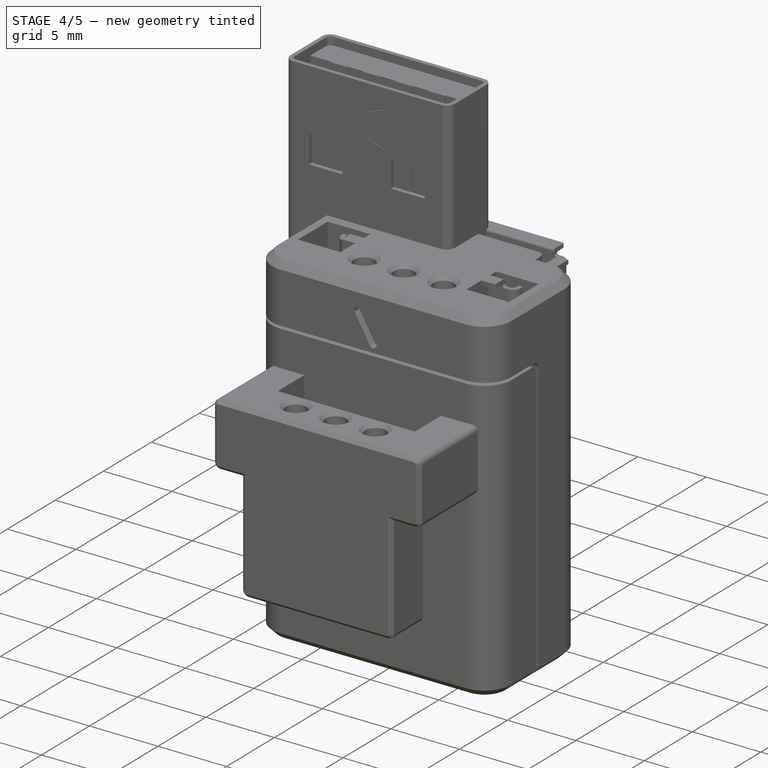
[diagram: stage 4 of 5 — iso view after this stage's code; geometry added in this stage tinted green]
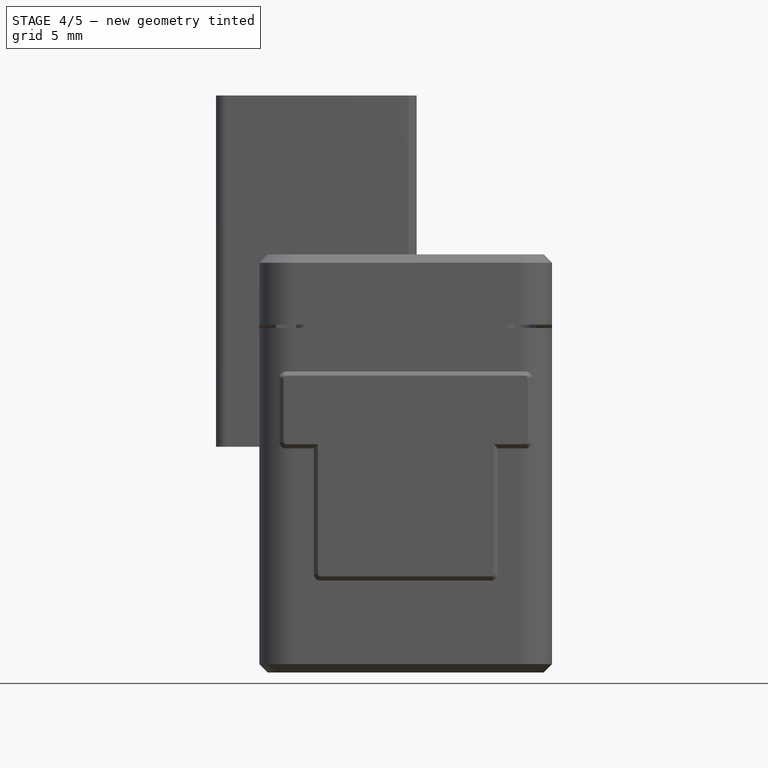
[diagram: stage 4 of 5 — front view after this stage's code; geometry added in this stage tinted green]
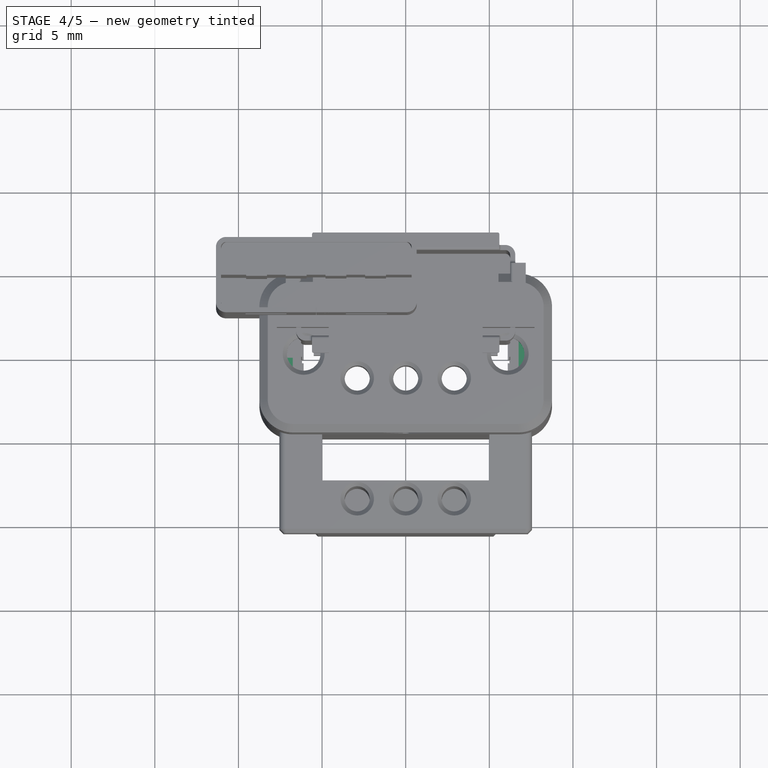
[diagram: stage 4 of 5 — top view after this stage's code; geometry added in this stage tinted green]
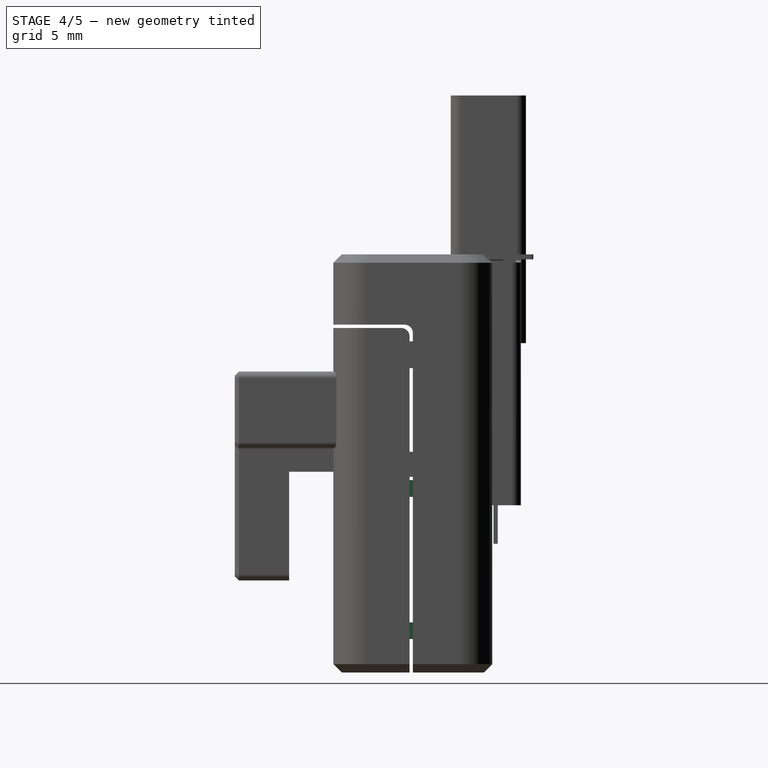
[diagram: stage 4 of 5 — right view after this stage's code; geometry added in this stage tinted green]
FEATURE [PartDesign::Chamfer] Chamfer004
  Angle = 45
  Base = -> Pocket014 [Edge181,Edge211,Edge212]
  BaseFeature = -> Pocket014
  ChamferType = 0
  FlipDirection = false
  Size = 0.25
  Size2 = 1
  SupportTransform = false
  UseAllEdges = false
FEATURE [Sketcher::SketchObject] Sketch023
  AttachmentOffset = pos=(0,0,-4.2) rot=(0,0,1;0rad)
  FullyConstrained = false
  MapMode = 5
  Placement = pos=(0,0,-4.2) rot=(0,0,1;0rad)
  Support = -> [XY_Plane009]
  expr: Constraints[63] = 2 + 1
  sketch-geometry (23):
    g0: LineSegment StartX=-1.75 StartY=4 StartZ=0 EndX=-1.25 EndY=4 EndZ=0
    g1: LineSegment StartX=-1.25 StartY=4 StartZ=0 EndX=-1.25 EndY=-4 EndZ=0
    g2: LineSegment StartX=-1.25 StartY=-4 StartZ=0 EndX=-1.75 EndY=-4 EndZ=0
    g3: LineSegment StartX=-1.75 StartY=-4 StartZ=0 EndX=-1.75 EndY=4 EndZ=0
    g4: LineSegment StartX=1.25 StartY=4 StartZ=0 EndX=1.75 EndY=4 EndZ=0
    g5: LineSegment StartX=1.75 StartY=4 StartZ=0 EndX=1.75 EndY=-4 EndZ=0
    g6: LineSegment StartX=1.75 StartY=-4 StartZ=0 EndX=1.25 EndY=-4 EndZ=0
    g7: LineSegment StartX=1.25 StartY=-4 StartZ=0 EndX=1.25 EndY=4 EndZ=0
    g8: LineSegment StartX=-4.25 StartY=4 StartZ=0 EndX=-4.75 EndY=4 EndZ=0
    g9: LineSegment StartX=-4.75 StartY=4 StartZ=0 EndX=-4.75 EndY=-4 EndZ=0
    g10: LineSegment StartX=-4.75 StartY=-4 StartZ=0 EndX=-4.25 EndY=-4 EndZ=0
    g11: LineSegment StartX=-4.25 StartY=-4 StartZ=0 EndX=-4.25 EndY=4 EndZ=0
    g12: LineSegment StartX=4.75 StartY=4 StartZ=0 EndX=4.25 EndY=4 EndZ=0
    g13: LineSegment StartX=4.25 StartY=4 StartZ=0 EndX=4.25 EndY=-4 EndZ=0
    g14: LineSegment StartX=4.25 StartY=-4 StartZ=0 EndX=4.75 EndY=-4 EndZ=0
    g15: LineSegment StartX=4.75 StartY=-4 StartZ=0 EndX=4.75 EndY=4 EndZ=0
    g16: LineSegment StartX=4.25 StartY=4 StartZ=0 EndX=1.75 EndY=4 EndZ=0
    g17: LineSegment StartX=1.25 StartY=4 StartZ=0 EndX=-1.25 EndY=4 EndZ=0
    g18: LineSegment StartX=-1.75 StartY=4 StartZ=0 EndX=-4.25 EndY=4 EndZ=0
    g19: LineSegment StartX=1.25 StartY=3.42637 StartZ=0 EndX=1.5 EndY=3.42637 EndZ=0
    g20: LineSegment StartX=1.5 StartY=3.42637 StartZ=0 EndX=1.75 EndY=3.42637 EndZ=0
    g21: LineSegment StartX=-1.75 StartY=3.36901 StartZ=0 EndX=-1.5 EndY=3.36901 EndZ=0
    g22: LineSegment StartX=-1.5 StartY=3.36901 StartZ=0 EndX=-1.25 EndY=3.36901 EndZ=0
  constraints (64):
    c: Coincident(g0,g1)
    c: Coincident(g1,g2)
    c: Coincident(g2,g3)
    c: Coincident(g3,g0)
    c: Horizontal(g0)
    c: Horizontal(g2)
    c: Vertical(g1)
    c: Vertical(g3)
    c: Coincident(g4,g5)
    c: Coincident(g5,g6)
    c: Coincident(g6,g7)
    c: Coincident(g7,g4)
    c: Horizontal(g4)
    c: Horizontal(g6)
    c: Vertical(g5)
    c: Vertical(g7)
    c: Coincident(g8,g9)
    c: Coincident(g9,g10)
    c: Coincident(g10,g11)
    c: Coincident(g11,g8)
    c: Horizontal(g8)
    c: Horizontal(g10)
    c: Vertical(g9)
    c: Vertical(g11)
    c: Coincident(g12,g13)
    c: Coincident(g13,g14)
    c: Coincident(g14,g15)
    c: Coincident(g15,g12)
    c: Horizontal(g12)
    c: Horizontal(g14)
    c: Vertical(g13)
    c: Equal(g12,g4)
    c: Equal(g4,g0)
    c: Equal(g0,g8)
    c: Coincident(g16,g12)
    c: Coincident(g16,g4)
    c: Horizontal(g16)
    c: Coincident(g17,g4)
    c: Coincident(g17,g0)
    c: Coincident(g18,g0)
    c: Coincident(g18,g8)
    c: Horizontal(g18)
    c: Symmetric(g14,g12,g-1)
    c: Horizontal(g13,g5)
    c: Horizontal(g5,g1)
    c: Horizontal(g1,g10)
    c: DistanceY(g15,g15) = 8
    c: DistanceX(g4,g4) = 0.5
    c: Symmetric(g4,g0,g-2)
    c: Equal(g16,g17)
    c: Equal(g17,g18)
    c: PointOnObject(g19,g7)
    c: Coincident(g20,g19)
    c: PointOnObject(g20,g5)
    c: Horizontal(g20)
    c: PointOnObject(g21,g3)
    c: Horizontal(g21)
    c: Coincident(g22,g21)
    c: PointOnObject(g22,g1)
    c: Horizontal(g22)
    c: Equal(g22,g21)
    c: Equal(g20,g19)
    c: Horizontal(g19)
    c: DistanceX(g21,g19) = 3
FEATURE [PartDesign::Pad] Pad007  label="spacers"
  BaseFeature = -> Chamfer004
  Direction = (0,0,1)
  Length = 1
  Length2 = 10
  Profile = -> Sketch023
  ReferenceAxis = -> Sketch023 [N_Axis]
  Reversed = true
  Type = 0
FEATURE [Part::Feature] Part__Feature005  label="usb_inside v5"
  Placement = pos=(-5.34459,2.61719,-8e-15) rot=(0,1,0;1.5708rad)
  shape: bbox 11.4 x 5.1 x 19 mm, 54 faces (baked)
FEATURE [PartDesign::CoordinateSystem] LCS_006
  AttacherType = Attacher::AttachEngine3D
  MapMode = 45
  Placement = pos=(-7.63459,2.61719,-7.22749) rot=(0.57735,0.57735,0.57735;4.18879rad)
  Support = -> [Part__Feature005]
FEATURE [Part::Feature] Part__Feature006  label="usb_inside v006"
  Placement = pos=(-5.34459,2.61719,-8e-15) rot=(0,1,0;1.5708rad)
  shape: bbox 1 x 3.404 x 1.2 mm, 13 faces (baked)
FEATURE [Part::Feature] Part__Feature007  label="usb_inside v007"
  Placement = pos=(-5.34459,2.61719,-8e-15) rot=(0,1,0;1.5708rad)
  shape: bbox 1 x 3.404 x 1.2 mm, 13 faces (baked)
FEATURE [Part::Feature] Part__Feature008  label="usb_inside v008"
  Placement = pos=(-5.34459,2.61719,-8e-15) rot=(0,1,0;1.5708rad)
  shape: bbox 1 x 3.404 x 1.2 mm, 13 faces (baked)
FEATURE [Part::Feature] Part__Feature009  label="usb_inside v009"
  Placement = pos=(-5.34459,2.61719,-8e-15) rot=(0,1,0;1.5708rad)
  shape: bbox 1 x 3.404 x 1.2 mm, 13 faces (baked)
FEATURE [Part::Feature] Part__Feature010  label="USB v6"
  Placement = pos=(-5.34459,6.61719,0) rot=(0,0,1;3.14159rad)
  shape: bbox 12.61 x 6.211 x 19.01 mm, 119 faces (baked)
FEATURE [Sketcher::SketchObject] Sketch024
  FullyConstrained = true
  MapMode = 5
  Support = -> [XY_Plane009]
  sketch-geometry (16):
    g0: LineSegment StartX=-1 StartY=3.75 StartZ=0 EndX=1 EndY=3.75 EndZ=0
    g1: LineSegment StartX=1 StartY=3.75 StartZ=0 EndX=1 EndY=-3.75 EndZ=0
    g2: LineSegment StartX=1 StartY=-3.75 StartZ=0 EndX=-1 EndY=-3.75 EndZ=0
    g3: LineSegment StartX=-1 StartY=-3.75 StartZ=0 EndX=-1 EndY=3.75 EndZ=0
    g4: LineSegment StartX=2 StartY=3.75 StartZ=0 EndX=4 EndY=3.75 EndZ=0
    g5: LineSegment StartX=4 StartY=3.75 StartZ=0 EndX=4 EndY=-3.75 EndZ=0
    g6: LineSegment StartX=4 StartY=-3.75 StartZ=0 EndX=2 EndY=-3.75 EndZ=0
    g7: LineSegment StartX=2 StartY=-3.75 StartZ=0 EndX=2 EndY=3.75 EndZ=0
    g8: LineSegment StartX=-4 StartY=3.75 StartZ=0 EndX=-2 EndY=3.75 EndZ=0
    g9: LineSegment StartX=-2 StartY=3.75 StartZ=0 EndX=-2 EndY=-3.75 EndZ=0
    g10: LineSegment StartX=-2 StartY=-3.75 StartZ=0 EndX=-4 EndY=-3.75 EndZ=0
    g11: LineSegment StartX=-4 StartY=-3.75 StartZ=0 EndX=-4 EndY=3.75 EndZ=0
    g12: LineSegment StartX=-2 StartY=3.75 StartZ=0 EndX=-1 EndY=3.75 EndZ=0
    g13: LineSegment StartX=1 StartY=3.75 StartZ=0 EndX=2 EndY=3.75 EndZ=0
    g14: LineSegment StartX=0 StartY=3.75 StartZ=0 EndX=0 EndY=0 EndZ=0
    g15: LineSegment StartX=0 StartY=0 StartZ=0 EndX=0 EndY=-3.75 EndZ=0
  constraints (45):
    c: Coincident(g0,g1)
    c: Coincident(g1,g2)
    c: Coincident(g2,g3)
    c: Coincident(g3,g0)
    c: Horizontal(g2)
    c: Vertical(g1)
    c: Vertical(g3)
    c: Coincident(g4,g5)
    c: Coincident(g5,g6)
    c: Coincident(g6,g7)
    c: Coincident(g7,g4)
    c: Horizontal(g4)
    c: Horizontal(g6)
    c: Vertical(g5)
    c: Vertical(g7)
    c: Coincident(g8,g9)
    c: Coincident(g9,g10)
    c: Coincident(g10,g11)
    c: Coincident(g11,g8)
    c: Horizontal(g8)
    c: Horizontal(g10)
    c: Vertical(g9)
    c: Vertical(g11)
    c: Equal(g0,g8)
    c: Equal(g8,g4)
    c: Equal(g3,g7)
    c: Equal(g7,g11)
    c: Coincident(g12,g8)
    c: Coincident(g12,g0)
    c: Horizontal(g12)
    c: Coincident(g13,g0)
    c: Coincident(g13,g4)
    c: Horizontal(g13)
    c: PointOnObject(g14,g0)
    c: Coincident(g15,g14)
    c: PointOnObject(g15,g2)
    c: Vertical(g15)
    c: Vertical(g14)
    c: Equal(g15,g14)
    c: DistanceY(g5,g5) = 7.5
    c: Symmetric(g0,g0,g-2)
    c: Equal(g12,g13)
    c: DistanceX(g2,g2) = 2
    c: DistanceX(g13,g13) = 1
    c: Coincident(g14,g-1)
FEATURE [PartDesign::Pocket] Pocket015  label="contacts_space"
  BaseFeature = -> Pad007
  Direction = (0,0,-1)
  Length = 0.2
  Length2 = 5
  Profile = -> Sketch024
  ReferenceAxis = -> Sketch024 [N_Axis]
  Refine = true
  Type = 0
FEATURE [Sketcher::SketchObject] Sketch025
  AttachmentOffset = pos=(0,0,-24) rot=(0,0,1;0rad)
  FullyConstrained = true
  MapMode = 5
  Placement = pos=(0,0,-24) rot=(0,0,1;0rad)
  Support = -> [XY_Plane008]
  sketch-geometry (8):
    g0: LineSegment StartX=-6.75 StartY=4.75 StartZ=0 EndX=6.75 EndY=4.75 EndZ=0
    g1: LineSegment StartX=8.75 StartY=2.75 StartZ=0 EndX=8.75 EndY=-2.75 EndZ=0
    g2: LineSegment StartX=6.75 StartY=-4.75 StartZ=0 EndX=-6.75 EndY=-4.75 EndZ=0
    g3: LineSegment StartX=-8.75 StartY=-2.75 StartZ=0 EndX=-8.75 EndY=2.75 EndZ=0
    g4: ArcOfCircle CenterX=6.75 CenterY=2.75 CenterZ=0 NormalX=0 NormalY=0 NormalZ=1 AngleXU=0 Radius=2 StartAngle=0 EndAngle=1.5708
    g5: ArcOfCircle CenterX=6.75 CenterY=-2.75 CenterZ=0 NormalX=0 NormalY=0 NormalZ=1 AngleXU=0 Radius=2 StartAngle=4.71239 EndAngle=6.28319
    g6: ArcOfCircle CenterX=-6.75 CenterY=-2.75 CenterZ=0 NormalX=0 NormalY=0 NormalZ=1 AngleXU=0 Radius=2 StartAngle=3.14159 EndAngle=4.71239
    g7: ArcOfCircle CenterX=-6.75 CenterY=2.75 CenterZ=0 NormalX=0 NormalY=0 NormalZ=1 AngleXU=0 Radius=2 StartAngle=1.5708 EndAngle=3.14159
  constraints (19):
    c: Horizontal(g0)
    c: Horizontal(g2)
    c: Vertical(g1)
    c: Vertical(g3)
    c: Tangent(g0,g4) = 1.5708
    c: Tangent(g1,g4) = 1.5708
    c: Tangent(g1,g5) = 1.5708
    c: Tangent(g2,g5) = 1.5708
    c: Tangent(g2,g6) = 1.5708
    c: Tangent(g3,g6) = 1.5708
    c: Tangent(g0,g7) = 1.5708
    c: Tangent(g3,g7) = 1.5708
    c: Equal(g7,g6)
    c: Equal(g6,g5)
    c: Equal(g5,g4)
    c: Symmetric(g7,g5,g-1)
    c: DistanceY(g2,g0) = 9.5
    c: DistanceX(g3,g1) = 17.5
    c: Radius(g4) = 2
FEATURE [PartDesign::Pad] Pad008  label="back_wall"
  BaseFeature = -> Pocket015
  Direction = (0,0,1)
  Length = 1
  Length2 = 10
  Profile = -> Sketch025
  ReferenceAxis = -> Sketch025 [N_Axis]
  Refine = true
  Reversed = true
  Type = 0
FEATURE [PartDesign::CoordinateSystem] LCS_bottom_edge  label="LCS_bottom_edge001"
  AttacherType = Attacher::AttachEngine3D
  MapMode = 45
  Placement = pos=(0,1e-16,-25) rot=(0,0,1;1.5708rad)
  Support = -> [Chamfer]
FEATURE [Sketcher::SketchObject] Sketch030
  AttachmentOffset = pos=(0,0,-24) rot=(0,0,1;0rad)
  FullyConstrained = true
  MapMode = 5
  Placement = pos=(0,0,-24) rot=(0,0,1;0rad)
  Support = -> [XY_Plane009]
  expr: Constraints[20] = 13.1 + 0.4
  expr: Constraints[22] = 5.7 + 0.4
  sketch-geometry (10):
    g0: ArcOfCircle CenterX=-5.75 CenterY=2.05 CenterZ=0 NormalX=0 NormalY=0 NormalZ=1 AngleXU=0 Radius=1 StartAngle=1.5708 EndAngle=3.14159
    g1: LineSegment StartX=-5.75 StartY=3.05 StartZ=0 EndX=5.75 EndY=3.05 EndZ=0
    g2: ArcOfCircle CenterX=5.75 CenterY=2.05 CenterZ=0 NormalX=0 NormalY=0 NormalZ=1 AngleXU=0 Radius=1 StartAngle=5e-16 EndAngle=1.5708
    g3: LineSegment StartX=6.75 StartY=2.05 StartZ=0 EndX=6.75 EndY=-2.05 EndZ=0
    g4: ArcOfCircle CenterX=5.75 CenterY=-2.05 CenterZ=0 NormalX=0 NormalY=0 NormalZ=1 AngleXU=0 Radius=1 StartAngle=4.71239 EndAngle=6.28319
    g5: LineSegment StartX=5.75 StartY=-3.05 StartZ=0 EndX=-5.75 EndY=-3.05 EndZ=0
    g6: ArcOfCircle CenterX=-5.75 CenterY=-2.05 CenterZ=0 NormalX=0 NormalY=0 NormalZ=1 AngleXU=0 Radius=1 StartAngle=3.14159 EndAngle=4.71239
    g7: LineSegment StartX=-6.75 StartY=-2.05 StartZ=0 EndX=-6.75 EndY=2.05 EndZ=0
    g8: GeomPoint X=-6.75 Y=3.05 Z=0
    g9: GeomPoint X=6.75 Y=-3.05 Z=0
  constraints (23):
    c: Tangent(g0,g1) = 1.5708
    c: Tangent(g1,g2) = 1.5708
    c: Tangent(g2,g3) = 1.5708
    c: Tangent(g3,g4) = 1.5708
    c: Tangent(g4,g5) = 1.5708
    c: Tangent(g5,g6) = 1.5708
    c: Tangent(g6,g7) = 1.5708
    c: Tangent(g7,g0) = 1.5708
    c: Horizontal(g1)
    c: Horizontal(g5)
    c: Vertical(g3)
    c: Vertical(g7)
    c: Equal(g0,g2)
    c: Equal(g2,g4)
    c: Equal(g4,g6)
    c: PointOnObject(g8,g1)
    c: PointOnObject(g8,g7)
    c: PointOnObject(g9,g3)
    c: PointOnObject(g9,g5)
    c: Symmetric(g9,g8,g-1)
    c: DistanceX(g0,g2) = 13.5
    c: Radius(g2) = 1
    c: DistanceY(g4,g1) = 6.1
FEATURE [PartDesign::Pocket] Pocket017
  BaseFeature = -> Pad008
  Direction = (0,0,-1)
  Length = 5
  Length2 = 5
  Profile = -> Sketch030
  ReferenceAxis = -> Sketch030 [N_Axis]
  Refine = true
  Type = 1
FEATURE [PartDesign::Chamfer] Chamfer005
  Angle = 45
  Base = -> Pocket017 [Edge8]
  BaseFeature = -> Pocket017
  ChamferType = 0
  FlipDirection = false
  Size = 0.5
  Size2 = 1
  SupportTransform = false
  UseAllEdges = false
FEATURE [PartDesign::Chamfer] Chamfer006
  Angle = 45
  Base = -> Chamfer005 [Edge16]
  BaseFeature = -> Chamfer005
  ChamferType = 0
  FlipDirection = false
  Size = 0.25
  Size2 = 1
  SupportTransform = false
  UseAllEdges = false
FEATURE [App::Link] Conn_USB_Female  label="Conn_USB_Female001"
  AttachedBy = #LCS_edge001
  AttachedTo = Conm_USB_Female#LCS_usb_connector
  AttachmentOffset = pos=(0,0,0) rot=(-1,0,0;3.14159rad)
  LinkPlacement = pos=(29.9851,9.803e-13,3.6) rot=(0.57735,-0.57735,0.57735;4.18879rad)
  LinkedObject = -> Part_3
  Placement = pos=(29.9851,9.803e-13,3.6) rot=(0.57735,-0.57735,0.57735;4.18879rad)
  SolverId = Asm4EE
  expr: Placement = Conm_USB_Female.Placement * LCS_usb_connector.Placement * AttachmentOffset * LCS_edge001.Placement ^ -1
FEATURE [Part::Feature] Part__Feature  label="usb3_ausb3_a-top"
  shape: bbox 15.6 x 7.2 x 18.8 mm, 269 faces (baked)
FEATURE [PartDesign::CoordinateSystem] LCS_edge001  label="LCS_edge"
  AttacherType = Attacher::AttachEngine3D
  MapMode = 45
  Placement = pos=(5.66e-14,3.6,-0.385138) rot=(0,0,1;1.5708rad)
  Support = -> [Part__Feature]
FEATURE [Sketcher::SketchObject] Sketch031
  AttachmentOffset = pos=(0,0,-25) rot=(0,0,1;0rad)
  FullyConstrained = true
  MapMode = 5
  Placement = pos=(0,0,-25) rot=(0,0,1;0rad)
  Support = -> [XY_Plane009]
  expr: Constraints[20] = 12.5 + 0.4 + 2
  expr: Constraints[21] = 5.1 + 0.4 + 2
  sketch-geometry (18):
    g0: ArcOfCircle CenterX=-5.75 CenterY=2.05 CenterZ=0 NormalX=0 NormalY=0 NormalZ=1 AngleXU=0 Radius=1.7 StartAngle=1.5708 EndAngle=3.14159
    g1: LineSegment StartX=-5.75 StartY=3.75 StartZ=0 EndX=5.75 EndY=3.75 EndZ=0
    g2: ArcOfCircle CenterX=5.75 CenterY=2.05 CenterZ=0 NormalX=0 NormalY=0 NormalZ=1 AngleXU=0 Radius=1.7 StartAngle=4.6506e-12 EndAngle=1.5708
    g3: LineSegment StartX=7.45 StartY=2.05 StartZ=0 EndX=7.45 EndY=-2.05 EndZ=0
    g4: ArcOfCircle CenterX=5.75 CenterY=-2.05 CenterZ=0 NormalX=0 NormalY=0 NormalZ=1 AngleXU=0 Radius=1.7 StartAngle=4.71239 EndAngle=6.28319
    g5: LineSegment StartX=5.75 StartY=-3.75 StartZ=0 EndX=-5.75 EndY=-3.75 EndZ=0
    g6: ArcOfCircle CenterX=-5.75 CenterY=-2.05 CenterZ=0 NormalX=0 NormalY=0 NormalZ=1 AngleXU=0 Radius=1.7 StartAngle=3.14159 EndAngle=4.71239
    g7: LineSegment StartX=-7.45 StartY=-2.05 StartZ=0 EndX=-7.45 EndY=2.05 EndZ=0
    g8: GeomPoint X=-7.45 Y=3.75 Z=0
    g9: GeomPoint X=7.45 Y=-3.75 Z=0
    g10: LineSegment StartX=-5.75 StartY=3.75 StartZ=0 EndX=-5.75 EndY=2.05 EndZ=0
    g11: LineSegment StartX=5.75 StartY=3.75 StartZ=0 EndX=5.75 EndY=2.05 EndZ=0
    g12: LineSegment StartX=7.45 StartY=-2.05 StartZ=0 EndX=5.75 EndY=-2.05 EndZ=0
    g13: LineSegment StartX=-7.45 StartY=2.05 StartZ=0 EndX=-5.75 EndY=2.05 EndZ=0
    g14: LineSegment StartX=5.75 StartY=2.05 StartZ=0 EndX=7.45 EndY=2.05 EndZ=0
    g15: LineSegment StartX=5.75 StartY=-2.05 StartZ=0 EndX=5.75 EndY=-3.75 EndZ=0
    g16: LineSegment StartX=-5.75 StartY=-2.05 StartZ=0 EndX=-7.45 EndY=-2.05 EndZ=0
    g17: LineSegment StartX=-5.75 StartY=-2.05 StartZ=0 EndX=-5.75 EndY=-3.75 EndZ=0
  constraints (39):
    c: Tangent(g0,g1) = 1.5708
    c: Tangent(g1,g2) = 1.5708
    c: Tangent(g2,g3) = 1.5708
    c: Tangent(g3,g4) = 1.5708
    c: Tangent(g4,g5) = 1.5708
    c: Tangent(g5,g6) = 1.5708
    c: Tangent(g6,g7) = 1.5708
    c: Tangent(g7,g0) = 1.5708
    c: Horizontal(g1)
    c: Horizontal(g5)
    c: Vertical(g3)
    c: Vertical(g7)
    c: Equal(g0,g2)
    c: Equal(g2,g4)
    c: Equal(g4,g6)
    c: PointOnObject(g8,g1)
    c: PointOnObject(g8,g7)
    c: PointOnObject(g9,g3)
    c: PointOnObject(g9,g5)
    c: Symmetric(g9,g8,g-1)
    c: DistanceX(g0,g2) = 14.9
    c: DistanceY(g4,g1) = 7.5
    c: Coincident(g10,g0)
    c: Coincident(g17,g5)
    c: Coincident(g11,g1)
    c: Coincident(g15,g4)
    c: Coincident(g12,g3)
    c: Coincident(g16,g6)
    c: Coincident(g13,g0)
    c: Coincident(g14,g2)
    c: Coincident(g11,g14)
    c: Coincident(g12,g15)
    c: Coincident(g10,g13)
    c: Coincident(g17,g16)
    c: Coincident(g0,g10)
    c: Coincident(g2,g11)
    c: Coincident(g4,g12)
    c: Coincident(g6,g16)
    c: DistanceX(g1,g1) = 11.5
FEATURE [PartDesign::Pocket] Pocket018  label="usb_dent"
  BaseFeature = -> Chamfer006
  Direction = (0,0,-1)
  Length = 0.4
  Length2 = 5
  Profile = -> Sketch031
  ReferenceAxis = -> Sketch031 [N_Axis]
  Refine = true
  Reversed = true
  Type = 0
FEATURE [Sketcher::SketchObject] Sketch032
  FullyConstrained = true
  MapMode = 5
  Placement = pos=(0,0,0) rot=(0.57735,0.57735,0.57735;2.0944rad)
  Support = -> [YZ_Plane034]
  sketch-geometry (4):
    g0: LineSegment StartX=0 StartY=-25 StartZ=0 EndX=-8 EndY=-25 EndZ=0
    g1: LineSegment StartX=-8 StartY=-25 StartZ=0 EndX=-8 EndY=-5 EndZ=0
    g2: LineSegment StartX=-8 StartY=-5 StartZ=0 EndX=0 EndY=-5 EndZ=0
    g3: LineSegment StartX=0 StartY=-5 StartZ=0 EndX=0 EndY=-25 EndZ=0
  constraints (12):
    c: Coincident(g0,g1)
    c: Coincident(g1,g2)
    c: Coincident(g2,g3)
    c: Coincident(g3,g0)
    c: Horizontal(g0)
    c: Horizontal(g2)
    c: Vertical(g1)
    c: Vertical(g3)
    c: PointOnObject(g0,g-2)
    c: DistanceY(g1,g-1) = 5
    c: DistanceY(g1,g1) = 20
    c: DistanceX(g0,g0) = 8
FEATURE [Sketcher::SketchObject] Sketch033
  FullyConstrained = true
  MapMode = 5
  Placement = pos=(0,0,0) rot=(0.57735,0.57735,0.57735;2.0944rad)
  Support = -> [YZ_Plane035]
  sketch-geometry (8):
    g0: LineSegment StartX=-0.2 StartY=-25.2 StartZ=0 EndX=-8.2 EndY=-25.2 EndZ=0
    g1: LineSegment StartX=-8.2 StartY=-25.2 StartZ=0 EndX=-8.2 EndY=-5.2 EndZ=0
    g2: LineSegment StartX=-8.2 StartY=-5.2 StartZ=0 EndX=-0.2 EndY=-5.2 EndZ=0
    g3: LineSegment StartX=-0.2 StartY=-5.2 StartZ=0 EndX=-0.2 EndY=-25.2 EndZ=0
    g4: LineSegment StartX=-10 StartY=0 StartZ=0 EndX=10 EndY=0 EndZ=0
    g5: LineSegment StartX=10 StartY=0 StartZ=0 EndX=10 EndY=-30 EndZ=0
    g6: LineSegment StartX=10 StartY=-30 StartZ=0 EndX=-10 EndY=-30 EndZ=0
    g7: LineSegment StartX=-10 StartY=-30 StartZ=0 EndX=-10 EndY=0 EndZ=0
  constraints (23):
    c: Coincident(g0,g1)
    c: Coincident(g1,g2)
    c: Coincident(g2,g3)
    c: Coincident(g3,g0)
    c: Horizontal(g0)
    c: Horizontal(g2)
    c: Vertical(g1)
    c: Vertical(g3)
    c: DistanceY(g1,g-1) = 5.2
    c: DistanceY(g1,g1) = 20
    c: Coincident(g4,g5)
    c: Coincident(g5,g6)
    c: Coincident(g6,g7)
    c: Coincident(g7,g4)
    c: Horizontal(g4)
    c: Horizontal(g6)
    c: Vertical(g5)
    c: Vertical(g7)
    c: DistanceX(g0,g0) = 8
    c: Symmetric(g4,g4,g-1)
    c: DistanceX(g4,g4) = 20
    c: DistanceX(g2) = -0.2
    c: DistanceY(g5,g5) = 30
FEATURE [Sketcher::SketchObject] Sketch034
  AttachmentOffset = pos=(0,0,4.5) rot=(0,0,1;0rad)
  FullyConstrained = true
  MapMode = 5
  Placement = pos=(4.5,-1e-15,1e-15) rot=(0.57735,0.57735,0.57735;2.0944rad)
  Support = -> [YZ_Plane009]
  sketch-geometry (6):
    g0: LineSegment StartX=3.05 StartY=-24 StartZ=0 EndX=3.75 EndY=-24 EndZ=0
    g1: LineSegment StartX=3.75 StartY=-24 StartZ=0 EndX=3.75 EndY=-7.8 EndZ=0
    g2: LineSegment StartX=3.75 StartY=-7.8 StartZ=0 EndX=1.75 EndY=-7.8 EndZ=0
    g3: LineSegment StartX=1.75 StartY=-7.8 StartZ=0 EndX=1.75 EndY=-9.8 EndZ=0
    g4: LineSegment StartX=1.75 StartY=-9.8 StartZ=0 EndX=3.05 EndY=-9.8 EndZ=0
    g5: LineSegment StartX=3.05 StartY=-9.8 StartZ=0 EndX=3.05 EndY=-24 EndZ=0
  constraints (18):
    c: Horizontal(g0)
    c: Coincident(g0,g1)
    c: Vertical(g1)
    c: Coincident(g1,g2)
    c: Horizontal(g2)
    c: Coincident(g2,g3)
    c: Vertical(g3)
    c: Coincident(g3,g4)
    c: Horizontal(g4)
    c: Coincident(g4,g5)
    c: Coincident(g5,g0)
    c: Vertical(g5)
    c: DistanceY(g0) = -24
    c: DistanceX(g0) = 3.75
    c: DistanceX(g0,g0) = 0.7
    c: DistanceX(g2,g2) = 2
    c: DistanceY(g3,g3) = 2
    c: DistanceY(g5,g5) = 14.2
FEATURE [PartDesign::Pad] Pad011
  BaseFeature = -> Pocket018
  Direction = (1,-2e-16,3e-16)
  Length = 1
  Length2 = 10
  Midplane = true
  Profile = -> Sketch034
  ReferenceAxis = -> Sketch034 [N_Axis]
  Type = 0
FEATURE [PartDesign::LinearPattern] LinearPattern
  Direction = -> Sketch034 [N_Axis]
  Length = 9
  Occurrences = 4
  Reversed = true
FEATURE [PartDesign::Mirrored] Mirrored002
  MirrorPlane = -> Sketch034 [V_Axis]
FEATURE [PartDesign::MultiTransform] MultiTransform
  BaseFeature = -> Pad011
  Originals = -> [Pad011]
  Transformations = -> [LinearPattern,Mirrored002]
FEATURE [PartDesign::CoordinateSystem] LCS_010  label="LCS_base"
  AttacherType = Attacher::AttachEngine3D
  MapMode = 45
  Placement = pos=(0,0,0.2) rot=(0,0,1;1.5708rad)
  Support = -> [Bend003]
FEATURE [PartDesign::Body] Pogo_Contact002  label="Pogo-Contact"
  Group = -> [LCS_010,Sketch035,Pad012,Bend,Bend001,Bend002,Bend003]
  Origin = -> Origin036
  Placement = pos=(0,0,0) rot=(0.57735,0.57735,0.57735;2.0944rad)
  Tip = -> Bend003
FEATURE [App::Link] Pogo_Contact  label="Pogo-Contact001"
  AttachedBy = #LCS_010
  AttachedTo = Conm_USB_Female#LCS_contact1
  AttachmentOffset = pos=(0,0,0) rot=(1,0,0;3.14159rad)
  LinkPlacement = pos=(5,-3,9e-16) rot=(0,1,0;1.5708rad)
  LinkedObject = -> Pogo_Contact002
  Placement = pos=(5,-3,9e-16) rot=(0,1,0;1.5708rad)
  SolverId = Asm4EE
  expr: Placement = Conm_USB_Female.Placement * LCS_contact1.Placement * AttachmentOffset * LCS_010.Placement ^ -1
FEATURE [App::Link] Pogo_Contact003  label="Pogo-Contact002"
  AttachedBy = #LCS_010
  AttachedTo = Conm_USB_Female#LCS_contact2
  AttachmentOffset = pos=(0,0,0) rot=(0,1,0;3.14159rad)
  LinkPlacement = pos=(5,6.578e-13,2e-16) rot=(-0.707107,0,-0.707107;3.14159rad)
  LinkedObject = -> Pogo_Contact002
  Placement = pos=(5,6.578e-13,2e-16) rot=(-0.707107,0,-0.707107;3.14159rad)
  SolverId = Asm4EE
  expr: Placement = Conm_USB_Female.Placement * LCS_contact2.Placement * AttachmentOffset * LCS_010.Placement ^ -1
FEATURE [App::Link] Pogo_Contact_1  label="Pogo-Contact_1"
  AttachedBy = #LCS_010
  AttachedTo = Conm_USB_Female#LCS_contact
  AttachmentOffset = pos=(0,0,0) rot=(0,1,0;3.14159rad)
  LinkPlacement = pos=(5,3,-5e-16) rot=(-0.707107,0,-0.707107;3.14159rad)
  LinkedObject = -> Pogo_Contact002
  Placement = pos=(5,3,-5e-16) rot=(-0.707107,0,-0.707107;3.14159rad)
  SolverId = Asm4EE
  expr: Placement = Conm_USB_Female.Placement * LCS_contact.Placement * AttachmentOffset * LCS_010.Placement ^ -1
FEATURE [App::DocumentObjectGroup] Group001  label="Female"
  Group = -> [Conm_USB_Female,Magnet_2,Magnet_3,Conn_USB_Female,Pogo_Contact,Pogo_Contact003,Pogo_Contact_1]
FEATURE [Sketcher::SketchObject] Sketch036
  FullyConstrained = true
  MapMode = 5
  Placement = pos=(0,0,0) rot=(1,0,0;1.5708rad)
  Support = -> [XZ_Plane009]
  sketch-geometry (17):
    g0: LineSegment StartX=6.75 StartY=-5 StartZ=0 EndX=7.75 EndY=-5 EndZ=0
    g1: LineSegment StartX=7.75 StartY=-5 StartZ=0 EndX=7.75 EndY=-6 EndZ=0
    g2: LineSegment StartX=7.75 StartY=-6 StartZ=0 EndX=6.75 EndY=-6 EndZ=0
    g3: LineSegment StartX=6.75 StartY=-6 StartZ=0 EndX=6.75 EndY=-5 EndZ=0
    g4: LineSegment StartX=7.75 StartY=-23 StartZ=0 EndX=6.75 EndY=-23 EndZ=0
    g5: LineSegment StartX=6.75 StartY=-23 StartZ=0 EndX=6.75 EndY=-22 EndZ=0
    g6: LineSegment StartX=6.75 StartY=-22 StartZ=0 EndX=7.75 EndY=-22 EndZ=0
    g7: LineSegment StartX=7.75 StartY=-22 StartZ=0 EndX=7.75 EndY=-23 EndZ=0
    g8: LineSegment StartX=7.75 StartY=-14.5 StartZ=0 EndX=6.75 EndY=-14.5 EndZ=0
    g9: LineSegment StartX=6.75 StartY=-14.5 StartZ=0 EndX=6.75 EndY=-13.5 EndZ=0
    g10: LineSegment StartX=6.75 StartY=-13.5 StartZ=0 EndX=7.75 EndY=-13.5 EndZ=0
    g11: LineSegment StartX=7.75 StartY=-13.5 StartZ=0 EndX=7.75 EndY=-14.5 EndZ=0
    g12: LineSegment StartX=7.75 StartY=-6 StartZ=0 EndX=7.75 EndY=-13.5 EndZ=0
    g13: LineSegment StartX=7.75 StartY=-14.5 StartZ=0 EndX=7.75 EndY=-22 EndZ=0
    g14: LineSegment StartX=6.75 StartY=-13.5 StartZ=0 EndX=7.75 EndY=-14.5 EndZ=0
    g15: LineSegment StartX=7.75 StartY=-13.5 StartZ=0 EndX=6.75 EndY=-14.5 EndZ=0
    g16: GeomPoint X=7.25 Y=-14 Z=0
  constraints (46):
    c: Coincident(g0,g1)
    c: Coincident(g1,g2)
    c: Coincident(g2,g3)
    c: Coincident(g3,g0)
    c: Horizontal(g0)
    c: Horizontal(g2)
    c: Vertical(g1)
    c: Vertical(g3)
    c: Coincident(g4,g5)
    c: Coincident(g5,g6)
    c: Coincident(g6,g7)
    c: Coincident(g7,g4)
    c: Horizontal(g4)
    c: Horizontal(g6)
    c: Vertical(g5)
    c: Vertical(g7)
    c: Coincident(g8,g9)
    c: Coincident(g9,g10)
    c: Coincident(g10,g11)
    c: Coincident(g11,g8)
    c: Horizontal(g8)
    c: Horizontal(g10)
    c: Vertical(g9)
    c: Vertical(g11)
    c: Equal(g1,g11)
    c: Equal(g11,g7)
    c: Equal(g6,g10)
    c: Equal(g10,g0)
    c: Coincident(g12,g1)
    c: Coincident(g12,g10)
    c: Vertical(g12)
    c: Coincident(g13,g8)
    c: Coincident(g13,g6)
    c: Vertical(g13)
    c: Equal(g13,g12)
    c: Coincident(g14,g8)
    c: Coincident(g15,g10)
    c: Coincident(g15,g8)
    c: PointOnObject(g16,g14)
    c: PointOnObject(g16,g15)
    c: Coincident(g9,g14)
    c: DistanceY(g16) = -14
    c: DistanceY(g1,g1) = 1
    c: DistanceX(g0,g0) = 1
    c: DistanceY(g12,g12) = 7.5
    c: DistanceX(g-1,g4) = 7.75
FEATURE [PartDesign::Pad] Pad013
  BaseFeature = -> MultiTransform
  Direction = (0,-1,-2e-16)
  Length = 8
  Length2 = 10
  Midplane = true
  Profile = -> Sketch036
  ReferenceAxis = -> Sketch036 [N_Axis]
  Type = 0
FEATURE [PartDesign::Mirrored] Mirrored003
  BaseFeature = -> Pad013
  MirrorPlane = -> Sketch036 [V_Axis]
  Originals = -> [Pad013]
FEATURE [PartDesign::FeatureBase] Clone006
  BaseFeature = -> Body
FEATURE [PartDesign::Body] Body006  label="USB-Female_Bot"
  BaseFeature = -> Body
  Group = -> [Clone005,Sketch032,Pocket019,Sketch037,Pocket021,Mirrored004,Fillet003]
  Origin = -> Origin034
  Placement = pos=(18,0,0) rot=(0,0,1;0rad)
  Tip = -> Fillet003
FEATURE [PartDesign::Pocket] Pocket025
  BaseFeature = -> Clone006
  Direction = (-1,2e-16,-3e-16)
  Length = 21
  Length2 = 5
  Midplane = true
  Profile = -> Sketch033
  ReferenceAxis = -> Sketch033 [N_Axis]
  Type = 1
FEATURE [PartDesign::Pad] Pad014
  BaseFeature = -> Pocket025
  Direction = (0,-1,-2e-16)
  Length = 1.5
  Length2 = 10
  Profile = -> Sketch038
  ReferenceAxis = -> Sketch038 [N_Axis]
  Reversed = true
  Type = 0
FEATURE [PartDesign::Pocket] Pocket026
  BaseFeature = -> Pad014
  Direction = (-1,0,0)
  Length = 0.2
  Length2 = 5
  Profile = -> Pad014 [Face44,Face46,Face48]
  Type = 0
FEATURE [PartDesign::Pocket] Pocket027
  BaseFeature = -> Pocket026
  Direction = (0,2e-16,-1)
  Length = 0.2
  Length2 = 5
  Profile = -> Pocket026 [Face70]
  Refine = true
  Type = 0
FEATURE [PartDesign::Fillet] Fillet
  Base = -> Pocket027 [Edge225]
  BaseFeature = -> Pocket027
  Radius = 0.5
  SupportTransform = false
  UseAllEdges = false
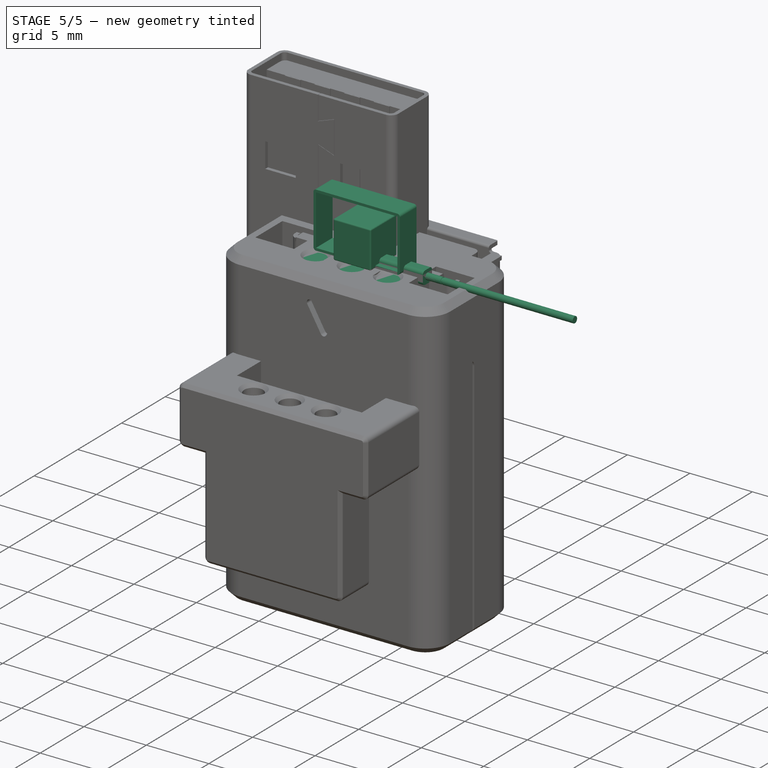
[diagram: stage 5 of 5 — iso view after this stage's code; geometry added in this stage tinted green]
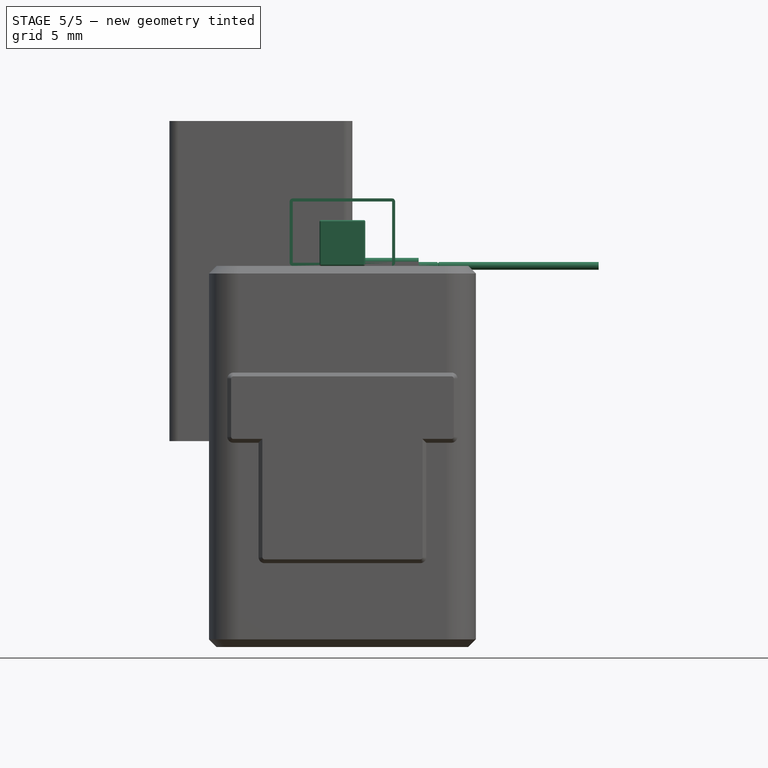
[diagram: stage 5 of 5 — front view after this stage's code; geometry added in this stage tinted green]
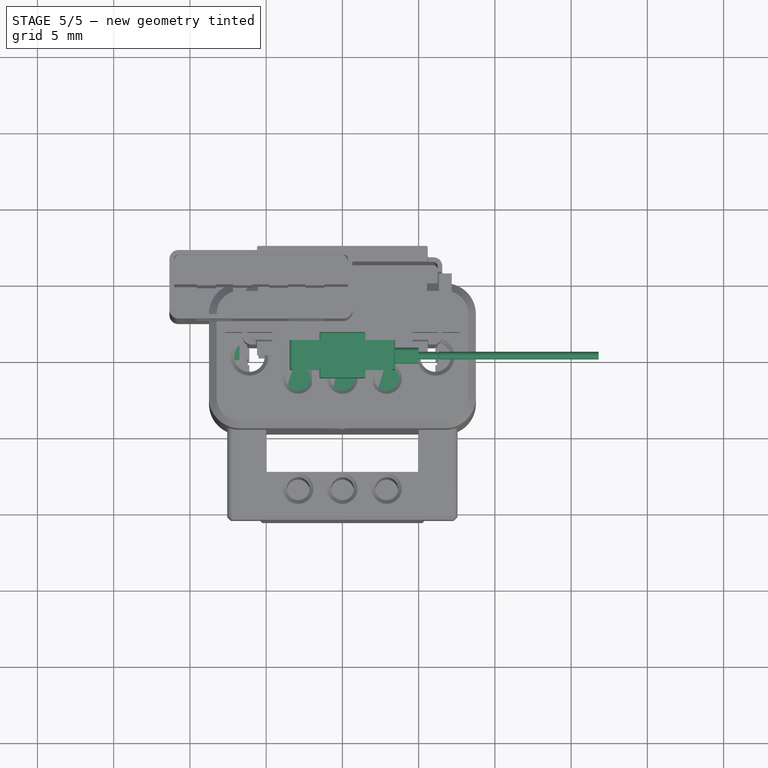
[diagram: stage 5 of 5 — top view after this stage's code; geometry added in this stage tinted green]
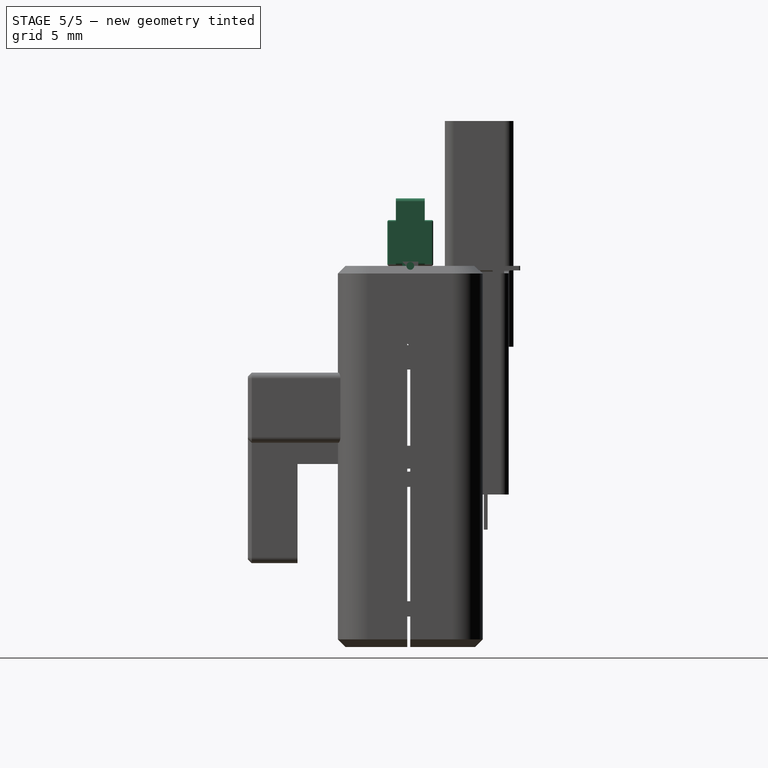
[diagram: stage 5 of 5 — right view after this stage's code; geometry added in this stage tinted green]
FEATURE [App::Link] Conn_USB_Male  label="Conn_USB_Male_1"
  AttachedBy = #LCS_002
  AttachedTo = Parent Assembly#LCS_Origin
  AttachmentOffset = pos=(-5,0,0) rot=(0.57735,-0.57735,0.57735;4.18879rad)
  LinkPlacement = pos=(-5,0,0) rot=(0.57735,-0.57735,0.57735;4.18879rad)
  LinkedObject = -> Conn_Male002
  Placement = pos=(-5,0,0) rot=(0.57735,-0.57735,0.57735;4.18879rad)
  SolverId = Asm4EE
  expr: Placement = LCS_Origin.Placement * AttachmentOffset * LCS_002.Placement ^ -1
FEATURE [App::Link] Conm_USB_Female  label="Conm_USB_Female_1"
  AttachedBy = #LCS_1
  AttachedTo = Parent Assembly#LCS_Origin
  AttachmentOffset = pos=(5,0,0) rot=(-0.707107,0,0.707107;3.14159rad)
  LinkPlacement = pos=(5,6.578e-13,1e-16) rot=(-0.57735,-0.57735,0.57735;2.0944rad)
  LinkedObject = -> Body
  Placement = pos=(5,6.578e-13,1e-16) rot=(-0.57735,-0.57735,0.57735;2.0944rad)
  SolverId = Asm4EE
  expr: Placement = LCS_Origin.Placement * AttachmentOffset * LCS_1.Placement ^ -1
FEATURE [PartDesign::CoordinateSystem] LCS_1
  AttacherType = Attacher::AttachEngine3D
  MapMode = 45
  Placement = pos=(-6.578e-13,1e-16,0) rot=(0,0,1;1.5708rad)
  Support = -> [Mirrored]
FEATURE [Sketcher::SketchObject] Sketch021
  FullyConstrained = true
  MapMode = 5
  Support = -> [XY_Plane019]
  sketch-geometry (4):
    g0: LineSegment StartX=-1.5 StartY=1.5 StartZ=0 EndX=1.5 EndY=1.5 EndZ=0
    g1: LineSegment StartX=1.5 StartY=1.5 StartZ=0 EndX=1.5 EndY=-1.5 EndZ=0
    g2: LineSegment StartX=1.5 StartY=-1.5 StartZ=0 EndX=-1.5 EndY=-1.5 EndZ=0
    g3: LineSegment StartX=-1.5 StartY=-1.5 StartZ=0 EndX=-1.5 EndY=1.5 EndZ=0
  constraints (11):
    c: Coincident(g0,g1)
    c: Coincident(g1,g2)
    c: Coincident(g2,g3)
    c: Coincident(g3,g0)
    c: Horizontal(g0)
    c: Horizontal(g2)
    c: Vertical(g1)
    c: Vertical(g3)
    c: Symmetric(g1,g0,g-1)
    c: Equal(g1,g0)
    c: DistanceX(g0,g0) = 3
FEATURE [PartDesign::Pad] Pad006
  Direction = (0,0,1)
  Length = 3
  Length2 = 10
  Profile = -> Sketch021
  ReferenceAxis = -> Sketch021 [N_Axis]
  Type = 0
FEATURE [PartDesign::Fillet] Fillet002
  Base = -> Pad006 [Edge9,Edge8,Edge11,Edge6,Edge3,Edge2,Edge1,Edge5,Edge7,Edge12,Edge10,Edge4]
  BaseFeature = -> Pad006
  Radius = 0.1
  SupportTransform = false
  UseAllEdges = false
FEATURE [PartDesign::CoordinateSystem] LCS_007
  AttacherType = Attacher::AttachEngine3D
  MapMode = 2
  Support = -> [X_Axis024]
FEATURE [PartDesign::CoordinateSystem] LCS_008
  AttacherType = Attacher::AttachEngine3D
  MapMode = 2
  Support = -> [X_Axis025]
FEATURE [PartDesign::CoordinateSystem] LCS_009
  AttacherType = Attacher::AttachEngine3D
  MapMode = 2
  Support = -> [X_Axis026]
FEATURE [Part::Feature] Part__Feature011  label="MEP-30B004"
  shape: bbox 17.53 x 0.6428 x 0.6428 mm, 8 faces (baked)
FEATURE [PartDesign::FeatureBase] Clone001
  BaseFeature = -> Part__Feature011
FEATURE [Sketcher::SketchObject] Sketch
  FullyConstrained = false
  MapMode = 5
  Support = -> [XY_Plane027]
  sketch-geometry (8):
    g0: LineSegment StartX=0 StartY=7.50636 StartZ=0 EndX=16.8 EndY=7.50636 EndZ=0
    g1: LineSegment StartX=16.8 StartY=7.50636 StartZ=0 EndX=16.8 EndY=-4.62673 EndZ=0
    g2: LineSegment StartX=16.8 StartY=-4.62673 StartZ=0 EndX=0 EndY=-4.62673 EndZ=0
    g3: LineSegment StartX=0 StartY=-4.62673 StartZ=0 EndX=0 EndY=7.50636 EndZ=0
    g4: LineSegment StartX=-1.57747 StartY=11.6426 StartZ=0 EndX=20.4768 EndY=11.6426 EndZ=0
    g5: LineSegment StartX=20.4768 StartY=11.6426 StartZ=0 EndX=20.4768 EndY=-6.73956 EndZ=0
    g6: LineSegment StartX=20.4768 StartY=-6.73956 StartZ=0 EndX=-1.57747 EndY=-6.73956 EndZ=0
    g7: LineSegment StartX=-1.57747 StartY=-6.73956 StartZ=0 EndX=-1.57747 EndY=11.6426 EndZ=0
  constraints (18):
    c: Coincident(g0,g1)
    c: Coincident(g1,g2)
    c: Coincident(g2,g3)
    c: Coincident(g3,g0)
    c: Horizontal(g0)
    c: Horizontal(g2)
    c: Vertical(g1)
    c: Vertical(g3)
    c: PointOnObject(g0,g-2)
    c: DistanceX(g0,g0) = 16.8
    c: Coincident(g4,g5)
    c: Coincident(g5,g6)
    c: Coincident(g6,g7)
    c: Coincident(g7,g4)
    c: Horizontal(g4)
    c: Horizontal(g6)
    c: Vertical(g5)
    c: Vertical(g7)
FEATURE [PartDesign::Pocket] Pocket
  BaseFeature = -> Clone001
  Direction = (0,0,-1)
  Length = 5
  Length2 = 5
  Midplane = true
  Profile = -> Sketch
  ReferenceAxis = -> Sketch [N_Axis]
  Type = 1
FEATURE [PartDesign::Body] Body001  label="Pogo-Pin"
  BaseFeature = -> Part__Feature011
  Group = -> [Clone001,Part__Feature011,Sketch,Pocket]
  Origin = -> Origin027
  Placement = pos=(0,-0.255,-0.255) rot=(0,0,1;0rad)
  Tip = -> Pocket
  expr: .Placement.Base.y = -0.51 / 2
  expr: .Placement.Base.z = -0.51 / 2
FEATURE [PartDesign::FeatureBase] Clone002
  BaseFeature = -> Body001
FEATURE [PartDesign::Body] Body002  label="Pogo-Pin001"
  BaseFeature = -> Body001
  Group = -> [Clone002]
  Origin = -> Origin028
  Placement = pos=(0,-0.255,0.255) rot=(0,0,1;0rad)
  Tip = -> Clone002
  expr: .Placement.Base.y = -0.51 / 2
  expr: .Placement.Base.z = 0.51 / 2
FEATURE [PartDesign::FeatureBase] Clone003
  BaseFeature = -> Body001
FEATURE [PartDesign::Body] Body003  label="Pogo-Pin002"
  BaseFeature = -> Body001
  Group = -> [Clone003]
  Origin = -> Origin029
  Placement = pos=(0,0.255,-0.255) rot=(0,0,1;0rad)
  Tip = -> Clone003
  expr: .Placement.Base.y = 0.51 / 2
  expr: .Placement.Base.z = -0.51 / 2
FEATURE [PartDesign::FeatureBase] Clone004
  BaseFeature = -> Body001
FEATURE [PartDesign::Body] Body004  label="Pogo-Pin003"
  BaseFeature = -> Body001
  Group = -> [Clone004]
  Origin = -> Origin030
  Placement = pos=(0,0.255,0.255) rot=(0,0,1;0rad)
  Tip = -> Clone004
  expr: .Placement.Base.y = 0.51 / 2
  expr: .Placement.Base.z = 0.51 / 2
FEATURE [Sketcher::SketchObject] Sketch026
  FullyConstrained = true
  MapMode = 5
  Placement = pos=(0,0,0) rot=(0.57735,0.57735,0.57735;2.0944rad)
  Support = -> [YZ_Plane031]
  sketch-geometry (11):
    g0: ArcOfCircle CenterX=-0.275 CenterY=0.275 CenterZ=0 NormalX=0 NormalY=0 NormalZ=1 AngleXU=0 Radius=0.25 StartAngle=1.5708 EndAngle=3.14159
    g1: LineSegment StartX=-0.275 StartY=0.525 StartZ=0 EndX=0.275 EndY=0.525 EndZ=0
    g2: ArcOfCircle CenterX=0.275 CenterY=0.275 CenterZ=0 NormalX=0 NormalY=0 NormalZ=1 AngleXU=0 Radius=0.25 StartAngle=1e-16 EndAngle=1.5708
    g3: LineSegment StartX=0.525 StartY=0.275 StartZ=0 EndX=0.525 EndY=-0.275 EndZ=0
    g4: ArcOfCircle CenterX=0.275 CenterY=-0.275 CenterZ=0 NormalX=0 NormalY=0 NormalZ=1 AngleXU=0 Radius=0.25 StartAngle=4.71239 EndAngle=6.28319
    g5: LineSegment StartX=0.275 StartY=-0.525 StartZ=0 EndX=-0.275 EndY=-0.525 EndZ=0
    g6: ArcOfCircle CenterX=-0.275 CenterY=-0.275 CenterZ=0 NormalX=0 NormalY=0 NormalZ=1 AngleXU=0 Radius=0.25 StartAngle=3.14159 EndAngle=4.71239
    g7: LineSegment StartX=-0.525 StartY=-0.275 StartZ=0 EndX=-0.525 EndY=0.275 EndZ=0
    g8: GeomPoint X=-0.525 Y=0.525 Z=0
    g9: GeomPoint X=0.525 Y=-0.525 Z=0
    g10: Circle CenterX=0 CenterY=0 CenterZ=0 NormalX=0 NormalY=0 NormalZ=1 AngleXU=0 Radius=0.525
  constraints (25):
    c: Tangent(g0,g1) = 1.5708
    c: Tangent(g1,g2) = 1.5708
    c: Tangent(g2,g3) = 1.5708
    c: Tangent(g3,g4) = 1.5708
    c: Tangent(g4,g5) = 1.5708
    c: Tangent(g5,g6) = 1.5708
    c: Tangent(g6,g7) = 1.5708
    c: Tangent(g7,g0) = 1.5708
    c: Horizontal(g1)
    c: Horizontal(g5)
    c: Vertical(g3)
    c: Vertical(g7)
    c: Equal(g0,g2)
    c: Equal(g2,g4)
    c: Equal(g4,g6)
    c: PointOnObject(g8,g1)
    c: PointOnObject(g8,g7)
    c: PointOnObject(g9,g3)
    c: PointOnObject(g9,g5)
    c: Symmetric(g9,g8,g-1)
    c: Coincident(g10,g-1)
    c: Tangent(g3,g10)
    c: Tangent(g10,g1)
    c: DistanceX(g0,g2) = 1.05
    c: Radius(g2) = 0.25
FEATURE [PartDesign::Pad] Pad
  Direction = (1,-2e-16,3e-16)
  Length = 5
  Length2 = 10
  Placement = pos=(0,0,0) rot=(0.57735,0.57735,0.57735;2.0944rad)
  Profile = -> Sketch026
  ReferenceAxis = -> Sketch026 [N_Axis]
  Type = 0
FEATURE [Sketcher::SketchObject] Sketch035
  FullyConstrained = true
  MapMode = 5
  Support = -> [XY_Plane036]
  expr: Constraints[10] = 2 * 3.25
  sketch-geometry (4):
    g0: LineSegment StartX=-3.25 StartY=0.95 StartZ=0 EndX=3.25 EndY=0.95 EndZ=0
    g1: LineSegment StartX=3.25 StartY=0.95 StartZ=0 EndX=3.25 EndY=-0.95 EndZ=0
    g2: LineSegment StartX=3.25 StartY=-0.95 StartZ=0 EndX=-3.25 EndY=-0.95 EndZ=0
    g3: LineSegment StartX=-3.25 StartY=-0.95 StartZ=0 EndX=-3.25 EndY=0.95 EndZ=0
  constraints (11):
    c: Coincident(g0,g1)
    c: Coincident(g1,g2)
    c: Coincident(g2,g3)
    c: Coincident(g3,g0)
    c: Horizontal(g0)
    c: Horizontal(g2)
    c: Vertical(g1)
    c: Vertical(g3)
    c: Symmetric(g0,g1,g-1)
    c: DistanceY(g1,g1) = 1.9
    c: DistanceX(g0,g0) = 6.5
FEATURE [PartDesign::Pad] Pad012
  Direction = (0,0,1)
  Length = 0.2
  Length2 = 10
  Profile = -> Sketch035
  ReferenceAxis = -> Sketch035 [N_Axis]
  Type = 0
FEATURE [PartDesign::FeaturePython] Bend  # WARN: FeaturePython — macro-defined, semantics opaque (R4)
  AutoMiter = true
  BaseFeature = -> Pad012
  BendType = 0
  LengthList = [4]
  LengthSpec = 0
  ReliefFactor = 0.7
  UseReliefFactor = false
  angle = 90
  baseObject = -> Pad012 [Face2]
  bendAList = [90]
  extend1 = 0
  extend2 = 0
  gap1 = 0
  gap2 = 0
  invert = false
  kfactor = 0.5
  length = 4
  maxExtendDist = 4
  minGap = 0.1
  minReliefGap = 1
  miterangle1 = 0
  miterangle2 = 0
  offset = 0
  radius = 0.01
  reliefType = 0
  reliefd = 1
  reliefw = 0.8
  sketchflip = false
  sketchinvert = false
  unfold = false
FEATURE [PartDesign::FeaturePython] Bend001  # WARN: FeaturePython — macro-defined, semantics opaque (R4)
  AutoMiter = true
  BaseFeature = -> Bend
  BendType = 0
  LengthList = [3]
  LengthSpec = 0
  ReliefFactor = 0.7
  UseReliefFactor = false
  angle = 90
  baseObject = -> Bend [Face3]
  bendAList = [90]
  extend1 = 0
  extend2 = 0
  gap1 = 0
  gap2 = 0
  invert = false
  kfactor = 0.5
  length = 3
  maxExtendDist = 5
  minGap = 0.1
  minReliefGap = 1
  miterangle1 = 0
  miterangle2 = 0
  offset = 0
  radius = 0.01
  reliefType = 0
  reliefd = 1
  reliefw = 0.8
  sketchflip = false
  sketchinvert = false
  unfold = false
FEATURE [PartDesign::FeaturePython] Bend002  # WARN: FeaturePython — macro-defined, semantics opaque (R4)
  AutoMiter = true
  BaseFeature = -> Bend001
  BendType = 0
  LengthList = [4]
  LengthSpec = 0
  ReliefFactor = 0.7
  UseReliefFactor = false
  angle = 90
  baseObject = -> Bend001 [Face21]
  bendAList = [90]
  extend1 = 0
  extend2 = 0
  gap1 = 0
  gap2 = 0
  invert = false
  kfactor = 0.5
  length = 4
  maxExtendDist = 5
  minGap = 0.1
  minReliefGap = 1
  miterangle1 = 0
  miterangle2 = 0
  offset = 0
  radius = 0.01
  reliefType = 0
  reliefd = 1
  reliefw = 0.8
  sketchflip = false
  sketchinvert = false
  unfold = false
FEATURE [PartDesign::FeaturePython] Bend003  # WARN: FeaturePython — macro-defined, semantics opaque (R4)
  AutoMiter = true
  BaseFeature = -> Bend002
  BendType = 0
  LengthList = [3.5]
  LengthSpec = 0
  ReliefFactor = 0.7
  UseReliefFactor = false
  angle = 90
  baseObject = -> Bend002 [Face3]
  bendAList = [90]
  extend1 = 0
  extend2 = 0
  gap1 = 0
  gap2 = 0
  invert = false
  kfactor = 0.5
  length = 3.5
  maxExtendDist = 5
  minGap = 0.1
  minReliefGap = 1
  miterangle1 = 0
  miterangle2 = 0
  offset = 0
  radius = 0.01
  reliefType = 0
  reliefd = 1
  reliefw = 0.8
  sketchflip = false
  sketchinvert = false
  unfold = false
FEATURE [PartDesign::CoordinateSystem] LCS_mag003
  AttacherType = Attacher::AttachEngine3D
  MapMode = 45
  Placement = pos=(-6.20221,2e-16,-3.2) rot=(0,0,1;0rad)
  Support = -> [Mirrored003]
FEATURE [PartDesign::CoordinateSystem] LCS_mag004
  AttacherType = Attacher::AttachEngine3D
  MapMode = 45
  Placement = pos=(6.20221,4e-16,-3.2) rot=(0,0,1;0rad)
  Support = -> [Mirrored003]
FEATURE [PartDesign::CoordinateSystem] LCS_usb_connector
  AttacherType = Attacher::AttachEngine3D
  MapMode = 45
  Placement = pos=(-4e-16,3e-16,-24.6) rot=(0,0,1;1.5708rad)
  Support = -> [Mirrored003]
FEATURE [PartDesign::CoordinateSystem] LCS_contact1
  AttacherType = Attacher::AttachEngine3D
  MapMode = 45
  Placement = pos=(-3,0,-0.2) rot=(0,0,1;0rad)
  Support = -> [Mirrored003]
FEATURE [PartDesign::CoordinateSystem] LCS_contact2
  AttacherType = Attacher::AttachEngine3D
  MapMode = 45
  Placement = pos=(1e-16,-1e-16,-0.2) rot=(0,0,1;0rad)
  Support = -> [Mirrored003]
FEATURE [PartDesign::CoordinateSystem] LCS_contact  label="LCS_contact3"
  AttacherType = Attacher::AttachEngine3D
  MapMode = 45
  Placement = pos=(3,-1e-16,-0.2) rot=(0,0,1;0rad)
  Support = -> [Mirrored003]
FEATURE [PartDesign::Body] Body  label="Housing-USB_Female"
  BaseFeature = -> Chamfer002
  Group = -> [Clone,Sketch020,Pocket013,Mirrored,LCS_1,Sketch022,Pocket014,Chamfer004,LCS_mag003,LCS_mag004,Sketch023,Pad007,Sketch024,Pocket015,Sketch025,Pad008,Sketch030,Pocket017,Chamfer005,Chamfer006,LCS_usb_connector,LCS_contact1,LCS_contact2,LCS_contact,Sketch031,Pocket018,Sketch034,Pad011,MultiTransform,LinearPattern,Mirrored002,Sketch036,Pad013,Mirrored003]
  Origin = -> Origin009
  Tip = -> Mirrored003
FEATURE [PartDesign::FeatureBase] Clone005
  BaseFeature = -> Body
FEATURE [PartDesign::Pocket] Pocket019
  BaseFeature = -> Clone005
  Direction = (-1,2e-16,-3e-16)
  Length = 5
  Length2 = 5
  Midplane = true
  Profile = -> Sketch032
  ReferenceAxis = -> Sketch032 [N_Axis]
  Type = 1
FEATURE [Sketcher::SketchObject] Sketch037
  FullyConstrained = true
  MapMode = 5
  Placement = pos=(0,0,0) rot=(1,0,0;1.5708rad)
  Support = -> [XZ_Plane034]
  sketch-geometry (17):
    g0: LineSegment StartX=6.75 StartY=-5 StartZ=0 EndX=7.75 EndY=-5 EndZ=0
    g1: LineSegment StartX=7.75 StartY=-5 StartZ=0 EndX=7.75 EndY=-6 EndZ=0
    g2: LineSegment StartX=7.75 StartY=-6 StartZ=0 EndX=6.75 EndY=-6 EndZ=0
    g3: LineSegment StartX=6.75 StartY=-6 StartZ=0 EndX=6.75 EndY=-5 EndZ=0
    g4: LineSegment StartX=7.75 StartY=-23 StartZ=0 EndX=6.75 EndY=-23 EndZ=0
    g5: LineSegment StartX=6.75 StartY=-23 StartZ=0 EndX=6.75 EndY=-22 EndZ=0
    g6: LineSegment StartX=6.75 StartY=-22 StartZ=0 EndX=7.75 EndY=-22 EndZ=0
    g7: LineSegment StartX=7.75 StartY=-22 StartZ=0 EndX=7.75 EndY=-23 EndZ=0
    g8: LineSegment StartX=7.75 StartY=-14.5 StartZ=0 EndX=6.75 EndY=-14.5 EndZ=0
    g9: LineSegment StartX=6.75 StartY=-14.5 StartZ=0 EndX=6.75 EndY=-13.5 EndZ=0
    g10: LineSegment StartX=6.75 StartY=-13.5 StartZ=0 EndX=7.75 EndY=-13.5 EndZ=0
    g11: LineSegment StartX=7.75 StartY=-13.5 StartZ=0 EndX=7.75 EndY=-14.5 EndZ=0
    g12: LineSegment StartX=7.75 StartY=-6 StartZ=0 EndX=7.75 EndY=-13.5 EndZ=0
    g13: LineSegment StartX=7.75 StartY=-14.5 StartZ=0 EndX=7.75 EndY=-22 EndZ=0
    g14: LineSegment StartX=6.75 StartY=-13.5 StartZ=0 EndX=7.75 EndY=-14.5 EndZ=0
    g15: LineSegment StartX=7.75 StartY=-13.5 StartZ=0 EndX=6.75 EndY=-14.5 EndZ=0
    g16: GeomPoint X=7.25 Y=-14 Z=0
  constraints (46):
    c: Coincident(g0,g1)
    c: Coincident(g1,g2)
    c: Coincident(g2,g3)
    c: Coincident(g3,g0)
    c: Horizontal(g0)
    c: Horizontal(g2)
    c: Vertical(g1)
    c: Vertical(g3)
    c: Coincident(g4,g5)
    c: Coincident(g5,g6)
    c: Coincident(g6,g7)
    c: Coincident(g7,g4)
    c: Horizontal(g4)
    c: Horizontal(g6)
    c: Vertical(g5)
    c: Vertical(g7)
    c: Coincident(g8,g9)
    c: Coincident(g9,g10)
    c: Coincident(g10,g11)
    c: Coincident(g11,g8)
    c: Horizontal(g8)
    c: Horizontal(g10)
    c: Vertical(g9)
    c: Vertical(g11)
    c: Equal(g1,g11)
    c: Equal(g11,g7)
    c: Equal(g6,g10)
    c: Equal(g10,g0)
    c: Coincident(g12,g1)
    c: Coincident(g12,g10)
    c: Vertical(g12)
    c: Coincident(g13,g8)
    c: Coincident(g13,g6)
    c: Vertical(g13)
    c: Equal(g13,g12)
    c: Coincident(g14,g8)
    c: Coincident(g15,g10)
    c: Coincident(g15,g8)
    c: PointOnObject(g16,g14)
    c: PointOnObject(g16,g15)
    c: Coincident(g9,g14)
    c: DistanceY(g16) = -14
    c: DistanceY(g1,g1) = 1
    c: DistanceX(g0,g0) = 1
    c: DistanceY(g12,g12) = 7.5
    c: DistanceX(g-1,g4) = 7.75
FEATURE [PartDesign::Pocket] Pocket021
  BaseFeature = -> Pocket019
  Direction = (0,1,2e-16)
  Length = 2
  Length2 = 5
  Profile = -> Sketch037
  ReferenceAxis = -> Sketch037 [N_Axis]
  Type = 0
FEATURE [PartDesign::Mirrored] Mirrored004
  BaseFeature = -> Pocket021
  MirrorPlane = -> Sketch037 [V_Axis]
  Originals = -> [Pocket021]
  Refine = true
FEATURE [Sketcher::SketchObject] Sketch038
  AttachmentOffset = pos=(0,0,0.2) rot=(0,0,1;0rad)
  FullyConstrained = true
  MapMode = 5
  Placement = pos=(0,-0.2,0) rot=(1,0,0;1.5708rad)
  Support = -> [XZ_Plane035]
  sketch-geometry (17):
    g0: LineSegment StartX=6.75 StartY=-5 StartZ=0 EndX=7.75 EndY=-5 EndZ=0
    g1: LineSegment StartX=7.75 StartY=-5 StartZ=0 EndX=7.75 EndY=-6 EndZ=0
    g2: LineSegment StartX=7.75 StartY=-6 StartZ=0 EndX=6.75 EndY=-6 EndZ=0
    g3: LineSegment StartX=6.75 StartY=-6 StartZ=0 EndX=6.75 EndY=-5 EndZ=0
    g4: LineSegment StartX=7.75 StartY=-23 StartZ=0 EndX=6.75 EndY=-23 EndZ=0
    g5: LineSegment StartX=6.75 StartY=-23 StartZ=0 EndX=6.75 EndY=-22 EndZ=0
    g6: LineSegment StartX=6.75 StartY=-22 StartZ=0 EndX=7.75 EndY=-22 EndZ=0
    g7: LineSegment StartX=7.75 StartY=-22 StartZ=0 EndX=7.75 EndY=-23 EndZ=0
    g8: LineSegment StartX=7.75 StartY=-14.5 StartZ=0 EndX=6.75 EndY=-14.5 EndZ=0
    g9: LineSegment StartX=6.75 StartY=-14.5 StartZ=0 EndX=6.75 EndY=-13.5 EndZ=0
    g10: LineSegment StartX=6.75 StartY=-13.5 StartZ=0 EndX=7.75 EndY=-13.5 EndZ=0
    g11: LineSegment StartX=7.75 StartY=-13.5 StartZ=0 EndX=7.75 EndY=-14.5 EndZ=0
    g12: LineSegment StartX=7.75 StartY=-6 StartZ=0 EndX=7.75 EndY=-13.5 EndZ=0
    g13: LineSegment StartX=7.75 StartY=-14.5 StartZ=0 EndX=7.75 EndY=-22 EndZ=0
    g14: LineSegment StartX=6.75 StartY=-13.5 StartZ=0 EndX=7.75 EndY=-14.5 EndZ=0
    g15: LineSegment StartX=7.75 StartY=-13.5 StartZ=0 EndX=6.75 EndY=-14.5 EndZ=0
    g16: GeomPoint X=7.25 Y=-14 Z=0
  constraints (46):
    c: Coincident(g0,g1)
    c: Coincident(g1,g2)
    c: Coincident(g2,g3)
    c: Coincident(g3,g0)
    c: Horizontal(g0)
    c: Horizontal(g2)
    c: Vertical(g1)
    c: Vertical(g3)
    c: Coincident(g4,g5)
    c: Coincident(g5,g6)
    c: Coincident(g6,g7)
    c: Coincident(g7,g4)
    c: Horizontal(g4)
    c: Horizontal(g6)
    c: Vertical(g5)
    c: Vertical(g7)
    c: Coincident(g8,g9)
    c: Coincident(g9,g10)
    c: Coincident(g10,g11)
    c: Coincident(g11,g8)
    c: Horizontal(g8)
    c: Horizontal(g10)
    c: Vertical(g9)
    c: Vertical(g11)
    c: Equal(g1,g11)
    c: Equal(g11,g7)
    c: Equal(g6,g10)
    c: Equal(g10,g0)
    c: Coincident(g12,g1)
    c: Coincident(g12,g10)
    c: Vertical(g12)
    c: Coincident(g13,g8)
    c: Coincident(g13,g6)
    c: Vertical(g13)
    c: Equal(g13,g12)
    c: Coincident(g14,g8)
    c: Coincident(g15,g10)
    c: Coincident(g15,g8)
    c: PointOnObject(g16,g14)
    c: PointOnObject(g16,g15)
    c: Coincident(g9,g14)
    c: DistanceY(g16) = -14
    c: DistanceY(g1,g1) = 1
    c: DistanceX(g0,g0) = 1
    c: DistanceY(g12,g12) = 7.5
    c: DistanceX(g-1,g4) = 7.75
FEATURE [PartDesign::Fillet] Fillet003
  Base = -> Mirrored004 [Edge70,Edge45]
  BaseFeature = -> Mirrored004
  Radius = 0.5
  SupportTransform = false
  UseAllEdges = false
FEATURE [PartDesign::Mirrored] Mirrored005
  BaseFeature = -> Fillet
  MirrorPlane = -> Sketch038 [V_Axis]
  Originals = -> [Pad014,Pocket026,Pocket027,Fillet]
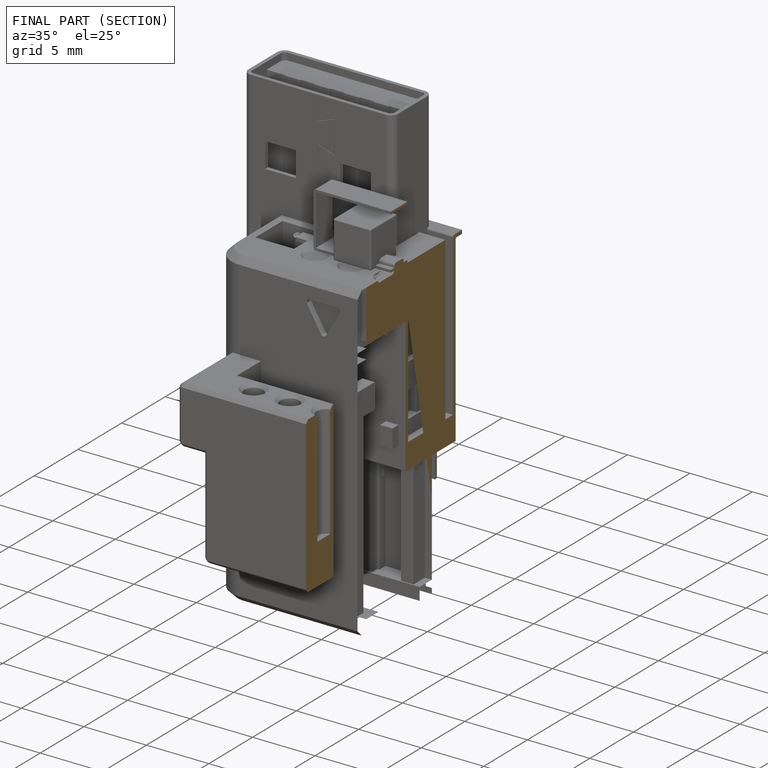
[diagram: finished part — half-section view (interior)]
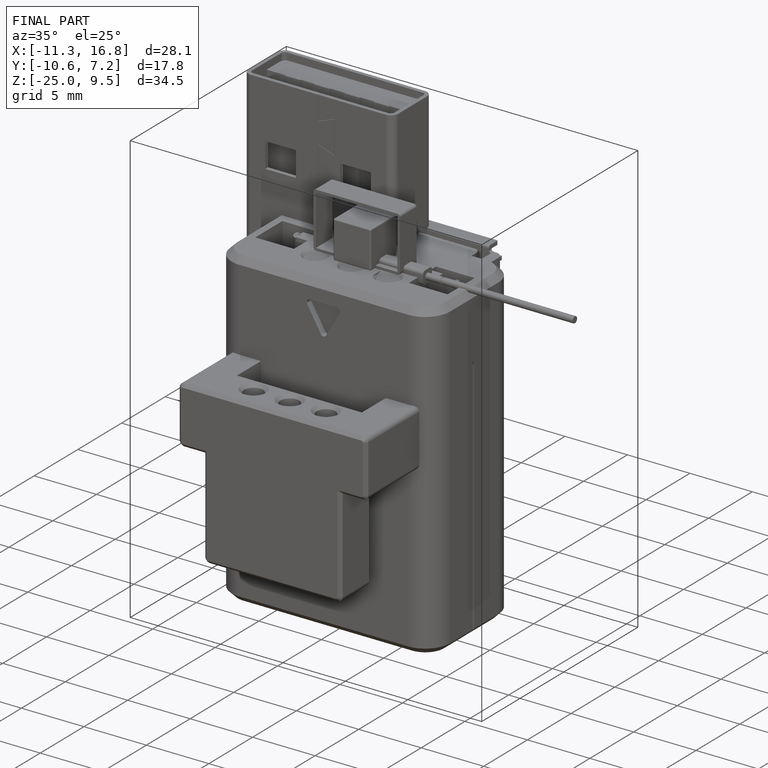
[diagram: finished part — iso view with bounding-box wireframe]
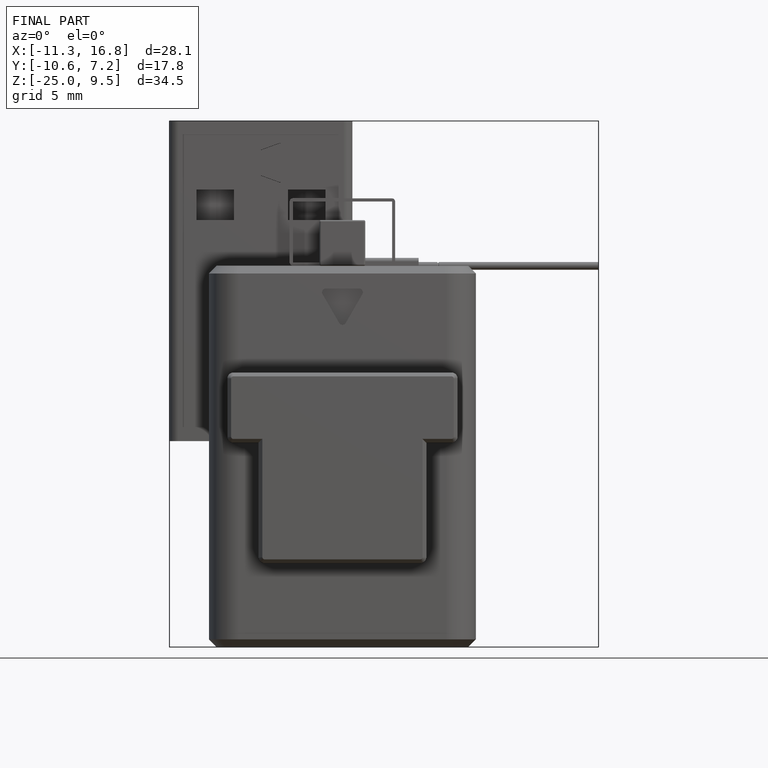
[diagram: finished part — front view with bounding-box wireframe]
